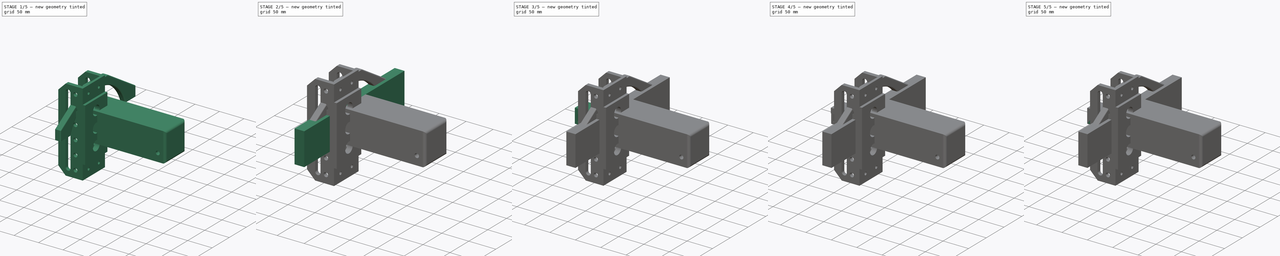
[diagram: build sequence overview — one tinted view per stage of 5, left to right]
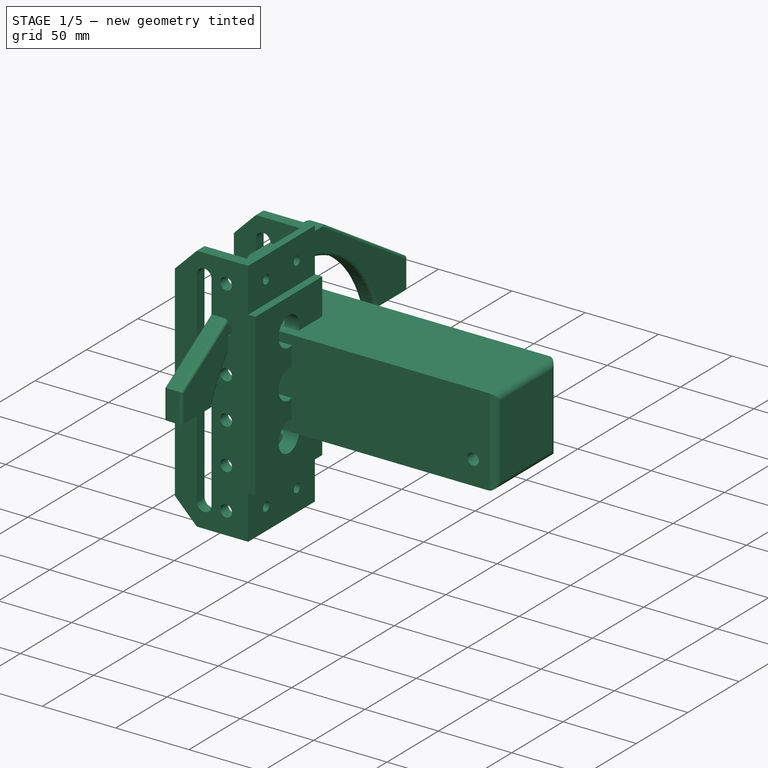
[diagram: stage 1 of 5 — iso view after this stage's code; geometry added in this stage tinted green]
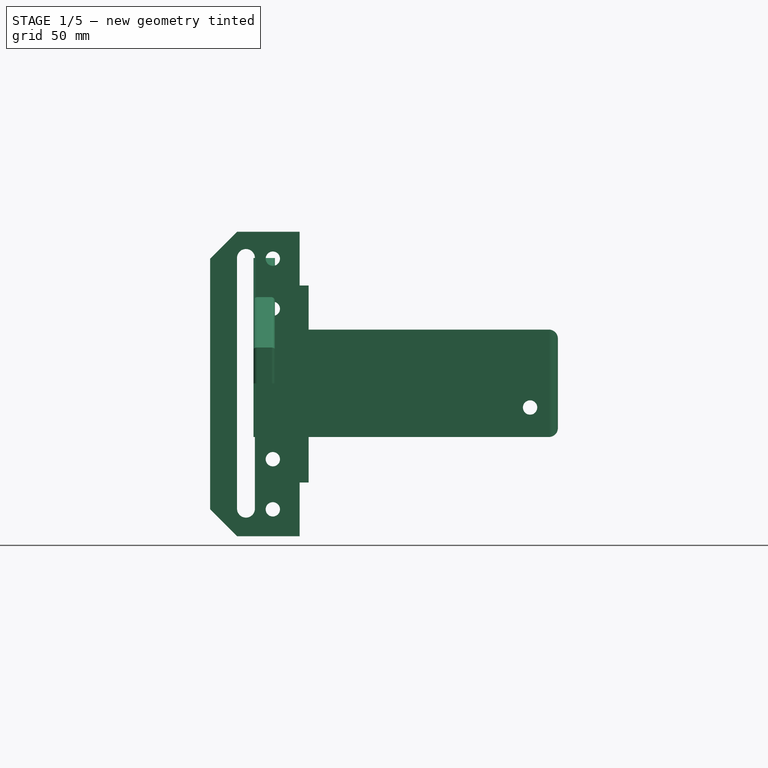
[diagram: stage 1 of 5 — front view after this stage's code; geometry added in this stage tinted green]
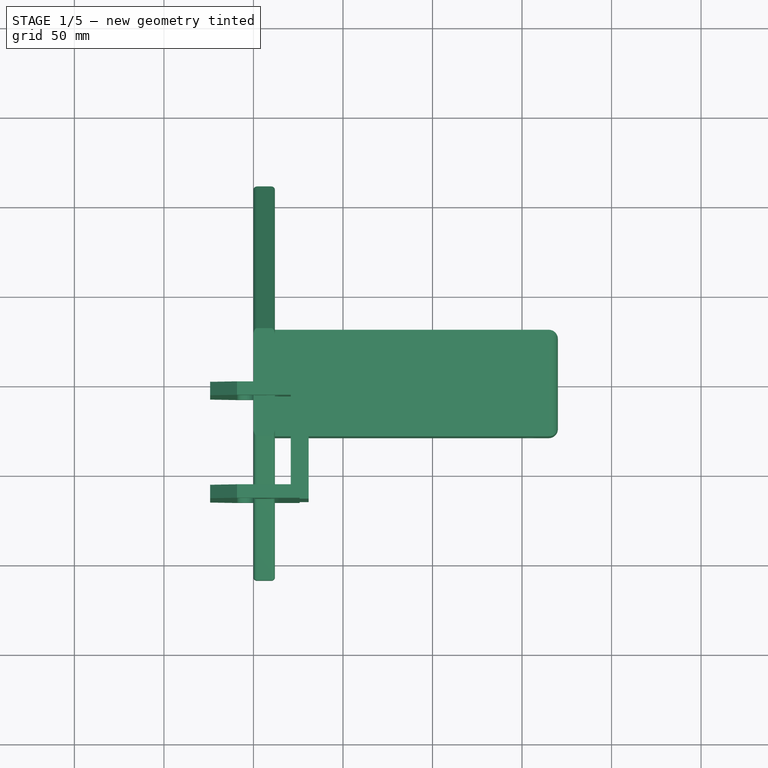
[diagram: stage 1 of 5 — top view after this stage's code; geometry added in this stage tinted green]
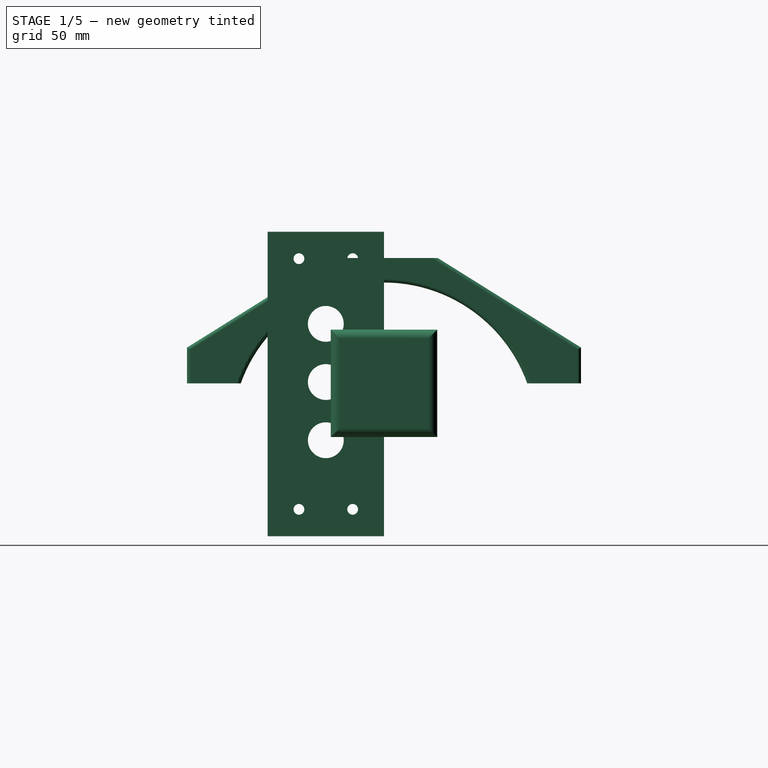
[diagram: stage 1 of 5 — right view after this stage's code; geometry added in this stage tinted green]
FCSTD DOCUMENT  (FreeCAD 0.19R24291 (Git))
Label: tablet holder
License: All rights reserved
LicenseURL: http://en.wikipedia.org/wiki/All_rights_reserved
objects: Sketcher::SketchObject×46, PartDesign::Pocket×29, PartDesign::Chamfer×18, PartDesign::Pad×17, PartDesign::Body×11, PartDesign::Fillet×5, PartDesign::LinearPattern×2, PartDesign::Plane×2, Spreadsheet::Sheet×1, PartDesign::Mirrored×1, PartDesign::PolarPattern×1, Drawing::FeatureViewPart×1, Drawing::FeaturePage×1
note: 201 computed .brp shape members not serialized (recipe doc carries the construction recipe); baked Part::Feature solids carry a one-line shape summary decoded from their .brp

FEATURE [Sketcher::SketchObject] Sketch
  FullyConstrained = false
  MapMode = 5
  Placement = pos=(0,0,0) rot=(1,0,0;1.5708rad)
  Support = -> [XZ_Plane]
  expr: Constraints[10] = Spreadsheet.bodyheight - 15mm
  sketch-geometry (6):
    g0: LineSegment StartX=-9.17467 StartY=84.6175 StartZ=0 EndX=30.8253 EndY=84.6175 EndZ=0
    g1: LineSegment StartX=30.8253 StartY=84.6175 StartZ=0 EndX=30.8253 EndY=-85.3825 EndZ=0
    g2: LineSegment StartX=30.8253 StartY=-85.3825 StartZ=0 EndX=-9.17467 EndY=-85.3825 EndZ=0
    g3: LineSegment StartX=-24.1747 StartY=-70.3825 StartZ=0 EndX=-24.1747 EndY=69.6175 EndZ=0
    g4: LineSegment StartX=-9.17467 StartY=84.6175 StartZ=0 EndX=-24.1747 EndY=69.6175 EndZ=0
    g5: LineSegment StartX=-24.1747 StartY=-70.3825 StartZ=0 EndX=-9.17467 EndY=-85.3825 EndZ=0
  constraints (15):
    c: Coincident(g0,g1)
    c: Coincident(g1,g2)
    c: Horizontal(g0)
    c: Horizontal(g2)
    c: Vertical(g1)
    c: Vertical(g3)
    c: Coincident(g0,g4)
    c: Coincident(g3,g4)
    c: Coincident(g3,g5)
    c: Coincident(g2,g5)
    c: DistanceX(g2,g2) = 40
    c: DistanceY(g1,g1) = 170
    c: DistanceY(g3,g3) = 140
    c: Equal(g0,g2)
    c: DistanceX(g3,g0) = 15
FEATURE [PartDesign::Pad] Pad
  Direction = (1,1,1)
  Length = 65
  Length2 = 100
  Placement = pos=(0,0,0) rot=(1,0,0;1.5708rad)
  Profile = -> Sketch
  Type = 0
  expr: Length = Spreadsheet.bodywidth
FEATURE [Sketcher::SketchObject] Sketch001
  ExternalGeometry = -> [Pad]
  FullyConstrained = true
  MapMode = 5
  Placement = pos=(0,-65,-1.43e-14) rot=(1,0,0;1.5708rad)
  Support = -> [Pad]
  sketch-geometry (4):
    g0: ArcOfCircle CenterX=-4.17467 CenterY=70 CenterZ=0 NormalX=0 NormalY=0 NormalZ=1 AngleXU=0 Radius=5 StartAngle=-9e-16 EndAngle=3.14159
    g1: ArcOfCircle CenterX=-4.17467 CenterY=-70 CenterZ=0 NormalX=0 NormalY=0 NormalZ=1 AngleXU=0 Radius=5 StartAngle=3.14159 EndAngle=6.28319
    g2: LineSegment StartX=-9.17467 StartY=70 StartZ=0 EndX=-9.17467 EndY=-70 EndZ=0
    g3: LineSegment StartX=0.825332 StartY=70 StartZ=0 EndX=0.825332 EndY=-70 EndZ=0
  constraints (10):
    c: Tangent(g0,g3) = 1.5708
    c: Tangent(g0,g2) = -1.5708
    c: Tangent(g2,g1) = -1.5708
    c: Tangent(g3,g1) = 1.5708
    c: Vertical(g2)
    c: Equal(g0,g1)
    c: Radius(g0) = 5
    c: DistanceY(g2,g2) = 140
    c: DistanceY(g1,g-1) = 70
    c: DistanceX(g0,g-3) = 35
FEATURE [PartDesign::Pocket] Pocket
  BaseFeature = -> Pad
  Length = 5
  Length2 = 100
  Placement = pos=(0,0,0) rot=(1,0,0;1.5708rad)
  Profile = -> Sketch001
  Type = 1
FEATURE [Sketcher::SketchObject] Sketch002
  ExternalGeometry = -> [Pocket]
  FullyConstrained = true
  MapMode = 5
  Placement = pos=(0,-65,-1.43e-14) rot=(1,0,0;1.5708rad)
  Support = -> [Pocket]
  sketch-geometry (1):
    g0: Circle CenterX=10.8253 CenterY=69.6175 CenterZ=0 NormalX=0 NormalY=0 NormalZ=1 AngleXU=0 Radius=4
  constraints (3):
    c: DistanceX(g0,g-4) = 20
    c: DistanceY(g0,g-4) = 15
    c: Radius(g0) = 4
FEATURE [PartDesign::Pocket] Pocket001
  BaseFeature = -> Pocket
  Length = 5
  Length2 = 100
  Placement = pos=(0,0,0) rot=(1,0,0;1.5708rad)
  Profile = -> Sketch002
  Type = 1
FEATURE [PartDesign::LinearPattern] LinearPattern
  BaseFeature = -> Pocket001
  Direction = -> Sketch002 [V_Axis]
  Length = 140
  Occurrences = 6
  Originals = -> [Pocket001]
  Placement = pos=(0,0,0) rot=(1,0,0;1.5708rad)
  Reversed = true
FEATURE [Sketcher::SketchObject] Sketch003
  ExternalGeometry = -> [LinearPattern]
  FullyConstrained = true
  MapMode = 5
  Placement = pos=(-24.1747,0,0) rot=(0.707107,0,-0.707107;3.14159rad)
  Support = -> [LinearPattern]
  sketch-geometry (4):
    g0: LineSegment StartX=-84.6175 StartY=57.5 StartZ=0 EndX=85.3825 EndY=57.5 EndZ=0
    g1: LineSegment StartX=85.3825 StartY=57.5 StartZ=0 EndX=85.3825 EndY=7.5 EndZ=0
    g2: LineSegment StartX=85.3825 StartY=7.5 StartZ=0 EndX=-84.6175 EndY=7.5 EndZ=0
    g3: LineSegment StartX=-84.6175 StartY=7.5 StartZ=0 EndX=-84.6175 EndY=57.5 EndZ=0
  constraints (12):
    c: Coincident(g0,g1)
    c: Coincident(g1,g2)
    c: Coincident(g2,g3)
    c: Coincident(g3,g0)
    c: Horizontal(g0)
    c: Horizontal(g2)
    c: Vertical(g1)
    c: Vertical(g3)
    c: PointOnObject(g0,g-8)
    c: PointOnObject(g1,g-4)
    c: DistanceY(g1,g1) = 50
    c: DistanceY(g0,g-9) = 7.5
FEATURE [PartDesign::Pocket] Pocket002
  BaseFeature = -> LinearPattern
  Length = 45
  Length2 = 100
  Placement = pos=(0,0,0) rot=(1,0,0;1.5708rad)
  Profile = -> Sketch003
  Type = 0
  expr: Length = Spreadsheet.bodyheight - 10mm
FEATURE [Sketcher::SketchObject] Sketch004
  ExternalGeometry = -> [Pocket002]
  FullyConstrained = false
  MapMode = 5
  Placement = pos=(30.8253,0,0) rot=(0.707107,0,0.707107;3.14159rad)
  Support = -> [Pocket002]
  sketch-geometry (8):
    g0: LineSegment StartX=-85.3825 StartY=65 StartZ=0 EndX=-55.3825 EndY=65 EndZ=0
    g1: LineSegment StartX=-55.3825 StartY=65 StartZ=0 EndX=-55.3825 EndY=0 EndZ=0
    g2: LineSegment StartX=-55.3825 StartY=0 StartZ=0 EndX=-85.3825 EndY=0 EndZ=0
    g3: LineSegment StartX=-85.3825 StartY=0 StartZ=0 EndX=-85.3825 EndY=65 EndZ=0
    g4: LineSegment StartX=84.6175 StartY=65 StartZ=0 EndX=54.6175 EndY=65 EndZ=0
    g5: LineSegment StartX=54.6175 StartY=65 StartZ=0 EndX=54.6175 EndY=0 EndZ=0
    g6: LineSegment StartX=54.6175 StartY=0 StartZ=0 EndX=84.6175 EndY=0 EndZ=0
    g7: LineSegment StartX=84.6175 StartY=0 StartZ=0 EndX=84.6175 EndY=65 EndZ=0
  constraints (21):
    c: Coincident(g0,g1)
    c: Coincident(g1,g2)
    c: Coincident(g2,g3)
    c: Coincident(g3,g0)
    c: Horizontal(g0)
    c: Horizontal(g2)
    c: Vertical(g1)
    c: Vertical(g3)
    c: Coincident(g0,g-3)
    c: DistanceX(g2,g2) = 30
    c: Coincident(g4,g5)
    c: Coincident(g5,g6)
    c: Coincident(g6,g7)
    c: Coincident(g7,g4)
    c: Horizontal(g4)
    c: Horizontal(g6)
    c: Vertical(g5)
    c: Vertical(g7)
    c: Coincident(g4,g-4)
    c: PointOnObject(g5,g-1)
    c: DistanceX(g6,g6) = 30
FEATURE [PartDesign::Pocket] Pocket003
  BaseFeature = -> Pocket002
  Length = 5
  Length2 = 100
  Placement = pos=(0,0,0) rot=(1,0,0;1.5708rad)
  Profile = -> Sketch004
  Type = 0
FEATURE [Sketcher::SketchObject] Sketch005
  ExternalGeometry = -> [Sketch004]
  FullyConstrained = true
  MapMode = 5
  Placement = pos=(25.8253,0,-5e-15) rot=(0.707107,0,0.707107;3.14159rad)
  sketch-geometry (4):
    g0: Circle CenterX=-70.3825 CenterY=17.5 CenterZ=0 NormalX=0 NormalY=0 NormalZ=1 AngleXU=0 Radius=3
    g1: Circle CenterX=-70.3825 CenterY=47.5 CenterZ=0 NormalX=0 NormalY=0 NormalZ=1 AngleXU=0 Radius=3
    g2: Circle CenterX=69.6175 CenterY=47.5 CenterZ=0 NormalX=0 NormalY=0 NormalZ=1 AngleXU=0 Radius=3
    g3: Circle CenterX=69.6175 CenterY=17.5 CenterZ=0 NormalX=0 NormalY=0 NormalZ=1 AngleXU=0 Radius=3
  constraints (12):
    c: Radius(g0) = 3
    c: Radius(g1) = 3
    c: DistanceX(g-3,g1) = 15
    c: DistanceY(g1,g-4) = 17.5
    c: DistanceY(g-4,g0) = 17.5
    c: DistanceX(g-4,g0) = 15
    c: Radius(g2) = 3
    c: Radius(g3) = 3
    c: DistanceX(g2,g-6) = 15
    c: DistanceY(g2,g-6) = 17.5
    c: DistanceX(g3,g-5) = 15
    c: DistanceY(g-5,g3) = 17.5
FEATURE [PartDesign::Pocket] Pocket004
  BaseFeature = -> Pocket003
  Length = 5
  Length2 = 100
  Placement = pos=(0,0,0) rot=(1,0,0;1.5708rad)
  Profile = -> Sketch005
  Type = 1
FEATURE [Sketcher::SketchObject] Sketch035
  FullyConstrained = false
  MapMode = 5
  Placement = pos=(30.8253,0,0) rot=(0.707107,0,0.707107;3.14159rad)
  sketch-geometry (1):
    g0: Circle CenterX=-31.7896 CenterY=32.5 CenterZ=0 NormalX=0 NormalY=0 NormalZ=1 AngleXU=0 Radius=10
  constraints (2):
    c: Radius(g0) = 10
    c: DistanceY(g-1,g0) = 32.5
FEATURE [PartDesign::Pocket] Pocket023
  BaseFeature = -> Pocket004
  Length = 5
  Length2 = 100
  Placement = pos=(0,0,0) rot=(1,0,0;1.5708rad)
  Profile = -> Sketch035
  Type = 1
FEATURE [PartDesign::Body] Body009  label="Knob"
  Group = -> [Sketch045,Pad015,Chamfer016,Chamfer017,DatumPlane,Sketch046,Pocket031,Chamfer023,PolarPattern,Sketch054,Pad018,Sketch055,Pocket035,DatumPlane001,Sketch056,Pocket036,Chamfer024]
  Origin = -> Origin009
  Tip = -> Chamfer024
FEATURE [Sketcher::SketchObject] Sketch058
  FullyConstrained = true
  MapMode = 5
  Placement = pos=(0,0,0) rot=(0.57735,0.57735,0.57735;2.0944rad)
  Support = -> [YZ_Plane010]
  sketch-geometry (8):
    g0: LineSegment StartX=-110 StartY=0 StartZ=0 EndX=-110 EndY=20 EndZ=0
    g1: LineSegment StartX=-110 StartY=20 StartZ=0 EndX=-30 EndY=70 EndZ=0
    g2: LineSegment StartX=-30 StartY=70 StartZ=0 EndX=30 EndY=70 EndZ=0
    g3: LineSegment StartX=30 StartY=70 StartZ=0 EndX=110 EndY=20 EndZ=0
    g4: LineSegment StartX=110 StartY=20 StartZ=0 EndX=110 EndY=0 EndZ=0
    g5: LineSegment StartX=-110 StartY=0 StartZ=0 EndX=-80 EndY=-2.49e-14 EndZ=0
    g6: LineSegment StartX=110 StartY=0 StartZ=0 EndX=80 EndY=-7.1e-15 EndZ=0
    g7: ArcOfCircle CenterX=1e-15 CenterY=-28.7228 CenterZ=0 NormalX=0 NormalY=0 NormalZ=1 AngleXU=0 Radius=85 StartAngle=0.344701 EndAngle=2.79689
  constraints (24):
    c: PointOnObject(g0,g-1)
    c: Vertical(g0)
    c: Coincident(g0,g1)
    c: Coincident(g1,g2)
    c: Coincident(g2,g3)
    c: Coincident(g3,g4)
    c: PointOnObject(g4,g-1)
    c: Vertical(g4)
    c: DistanceY(g4,g2) = 70
    c: DistanceY(g0,g0) = 20
    c: DistanceY(g4,g4) = 20
    c: DistanceX(g2,g2) = 60
    c: Symmetric(g1,g2,g-2)
    c: Equal(g1,g3)
    c: DistanceX(g1,g1) = 80
    c: Coincident(g5,g0)
    c: PointOnObject(g5,g-1)
    c: Coincident(g6,g4)
    c: PointOnObject(g6,g-1)
    c: DistanceX(g6,g6) = 30
    c: Equal(g5,g6)
    c: Coincident(g7,g5)
    c: Coincident(g7,g6)
    c: Radius(g7) = 85
FEATURE [PartDesign::Pad] Pad019
  Direction = (1,1,1)
  Length = 12
  Length2 = 100
  Placement = pos=(0,0,0) rot=(0.57735,0.57735,0.57735;2.0944rad)
  Profile = -> Sketch058
  Type = 0
FEATURE [PartDesign::Body] Body011  label="Cross Support"
  Group = -> [Sketch059,Pad020]
  Origin = -> Origin011
  Tip = -> Pad020
FEATURE [Sketcher::SketchObject] Sketch060
  FullyConstrained = true
  MapMode = 5
  Placement = pos=(0,0,0) rot=(0.57735,0.57735,0.57735;2.0944rad)
  Support = -> [YZ_Plane012]
  sketch-geometry (4):
    g0: LineSegment StartX=-29.75 StartY=30 StartZ=0 EndX=29.75 EndY=30 EndZ=0
    g1: LineSegment StartX=29.75 StartY=30 StartZ=0 EndX=29.75 EndY=-30 EndZ=0
    g2: LineSegment StartX=29.75 StartY=-30 StartZ=0 EndX=-29.75 EndY=-30 EndZ=0
    g3: LineSegment StartX=-29.75 StartY=-30 StartZ=0 EndX=-29.75 EndY=30 EndZ=0
  constraints (11):
    c: Coincident(g0,g1)
    c: Coincident(g1,g2)
    c: Coincident(g2,g3)
    c: Coincident(g3,g0)
    c: Horizontal(g0)
    c: Horizontal(g2)
    c: Vertical(g1)
    c: Vertical(g3)
    c: DistanceY(g1,g1) = 60
    c: DistanceX(g0,g0) = 59.5
    c: Symmetric(g0,g1,g-1)
FEATURE [PartDesign::Pad] Pad021
  Direction = (1,1,1)
  Length = 170
  Length2 = 100
  Placement = pos=(0,0,0) rot=(0.57735,0.57735,0.57735;2.0944rad)
  Profile = -> Sketch060
  Type = 0
FEATURE [PartDesign::Fillet] Fillet004
  Base = -> Pad021 [Edge7,Edge4,Edge10,Edge12]
  BaseFeature = -> Pad021
  Placement = pos=(0,0,0) rot=(0.57735,0.57735,0.57735;2.0944rad)
  Radius = 5
  SupportTransform = false
FEATURE [Sketcher::SketchObject] Sketch061
  ExternalGeometry = -> [Fillet004]
  FullyConstrained = true
  MapMode = 5
  Placement = pos=(1.31e-14,29.75,-6.5e-15) rot=(0.57735,0.57735,0.57735;4.18879rad)
  Support = -> [Fillet004]
  sketch-geometry (1):
    g0: Circle CenterX=-13.5 CenterY=154.5 CenterZ=0 NormalX=0 NormalY=0 NormalZ=1 AngleXU=0 Radius=4
  constraints (3):
    c: Diameter(g0) = 8
    c: DistanceX(g-4,g0) = 16.5
    c: DistanceY(g0,g-3) = 15.5
FEATURE [PartDesign::Pocket] Pocket038
  BaseFeature = -> Fillet004
  Length = 5
  Length2 = 100
  Placement = pos=(0,0,0) rot=(0.57735,0.57735,0.57735;2.0944rad)
  Profile = -> Sketch061
  Type = 1
FEATURE [PartDesign::Body] Body012  label="Upright"
  Group = -> [Sketch060,Pad021,Fillet004,Sketch061,Pocket038]
  Origin = -> Origin012
  Tip = -> Pocket038
FEATURE [PartDesign::Fillet] Fillet005
  Base = -> Pad019 [Edge21,Edge22]
  BaseFeature = -> Pad019
  Placement = pos=(0,0,0) rot=(0.57735,0.57735,0.57735;2.0944rad)
  Radius = 2
  SupportTransform = false
FEATURE [PartDesign::Fillet] Fillet006
  Base = -> Fillet005 [Edge22,Edge16,Edge19,Edge25,Edge17,Edge23,Edge14,Edge20]
  BaseFeature = -> Fillet005
  Placement = pos=(0,0,0) rot=(0.57735,0.57735,0.57735;2.0944rad)
  Radius = 2
  SupportTransform = false
FEATURE [PartDesign::Body] Body010  label="Legs"
  Group = -> [Sketch058,Pad019,Fillet005,Fillet006]
  Origin = -> Origin010
  Tip = -> Fillet006
FEATURE [PartDesign::LinearPattern] LinearPattern001
  BaseFeature = -> Pocket023
  Direction = -> Sketch035 [H_Axis]
  Length = 65
  Occurrences = 3
  Originals = -> [Pocket023]
  Placement = pos=(0,0,0) rot=(1,0,0;1.5708rad)
FEATURE [PartDesign::Body] Body
  Group = -> [Sketch,Pad,Sketch001,Pocket,Sketch002,Pocket001,LinearPattern,Sketch003,Pocket002,Sketch004,Pocket003,Sketch005,Pocket004,Sketch035,Pocket023,LinearPattern001]
  Origin = -> Origin
  Tip = -> LinearPattern001
FEATURE [Drawing::FeatureViewPart] Ortho  label="Ortho_0_0"
  Direction = (1,0,0)
  HiddenWidth = 0.15
  LineWidth = 0.35
  Rotation = -90
  ShowHiddenLines = false
  ShowSmoothLines = false
  Source = -> Body010
  Tolerance = 0.05
  ViewResult = <blob: 4936 chars omitted>
  Visible = true
  X = 148.5
  Y = 121
FEATURE [Drawing::FeaturePage] Page  label="Leg Drawing"
  EditableTexts = Jason Pell | Leg Side View | 2 are required | A4 | 1 | 1:1 | 1 | 1 | 28/08/2021 | REV A
  Group = -> [Ortho]
  Template = <path>
note: 1 file-system path scrubbed to <path> (originals preserved in the JSON sidecar)
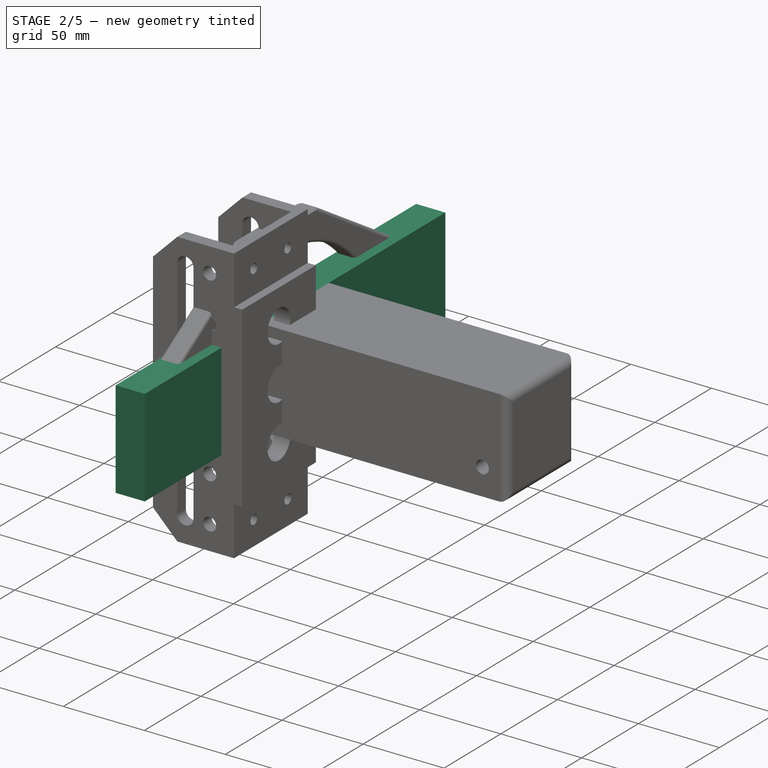
[diagram: stage 2 of 5 — iso view after this stage's code; geometry added in this stage tinted green]
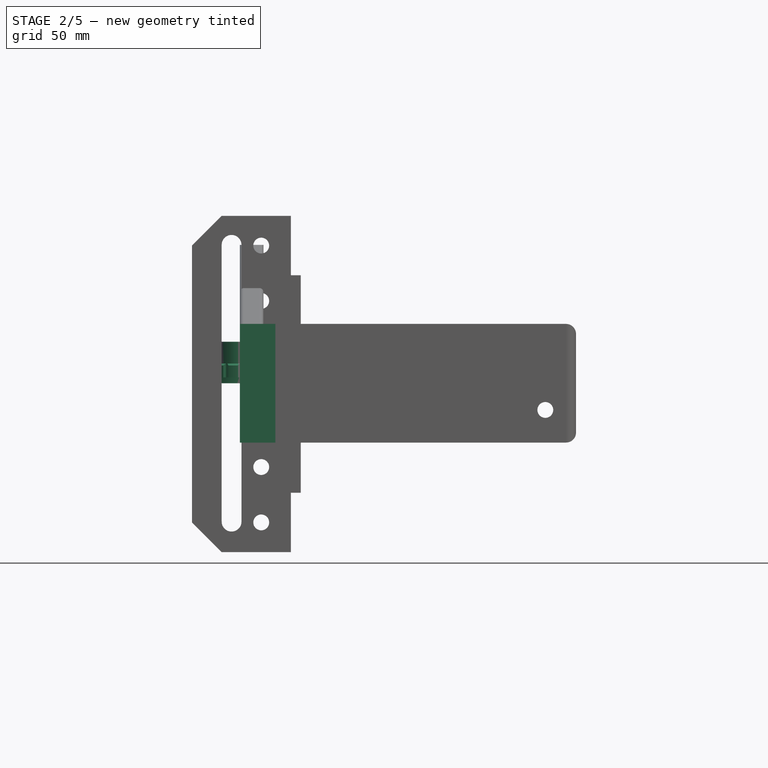
[diagram: stage 2 of 5 — front view after this stage's code; geometry added in this stage tinted green]
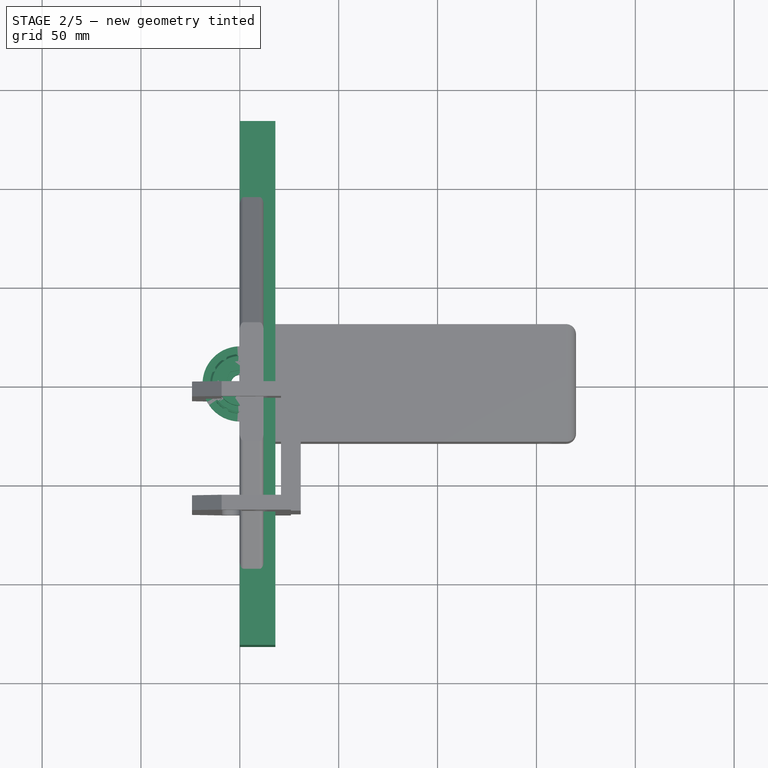
[diagram: stage 2 of 5 — top view after this stage's code; geometry added in this stage tinted green]
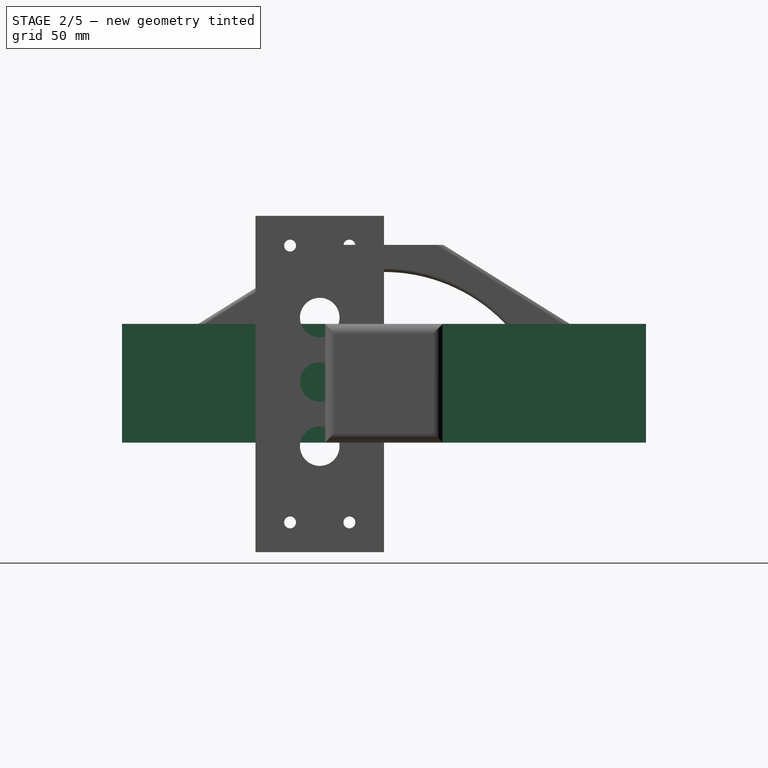
[diagram: stage 2 of 5 — right view after this stage's code; geometry added in this stage tinted green]
FEATURE [Sketcher::SketchObject] Sketch043
  FullyConstrained = false
  MapMode = 5
  Support = -> [XY_Plane008]
  sketch-geometry (1):
    g0: Circle CenterX=0.140173 CenterY=0 CenterZ=0 NormalX=0 NormalY=0 NormalZ=1 AngleXU=0 Radius=19
  constraints (2):
    c: PointOnObject(g0,g-1)
    c: Diameter(g0) = 38
FEATURE [PartDesign::Pad] Pad014
  Direction = (1,1,1)
  Length = 3
  Length2 = 100
  Profile = -> Sketch043
  Type = 0
FEATURE [Sketcher::SketchObject] Sketch044
  FullyConstrained = true
  MapMode = 5
  Placement = pos=(0,0,0) rot=(1,0,0;3.14159rad)
  Support = -> [Pad014]
  sketch-geometry (1):
    g0: Circle CenterX=0 CenterY=0 CenterZ=0 NormalX=0 NormalY=0 NormalZ=1 AngleXU=0 Radius=4.5
  constraints (2):
    c: Coincident(g0,g-1)
    c: Diameter(g0) = 9
FEATURE [PartDesign::Pocket] Pocket030
  BaseFeature = -> Pad014
  Length = 5
  Length2 = 100
  Profile = -> Sketch044
  Type = 1
FEATURE [PartDesign::Chamfer] Chamfer014
  Angle = 45
  Base = -> Pocket030 [Edge4,Edge5]
  BaseFeature = -> Pocket030
  ChamferType = 0
  FlipDirection = false
  Size = 0.3
  Size2 = 1
  SupportTransform = false
FEATURE [Sketcher::SketchObject] Sketch045
  FullyConstrained = true
  MapMode = 5
  Support = -> [XY_Plane009]
  sketch-geometry (1):
    g0: Circle CenterX=0 CenterY=0 CenterZ=0 NormalX=0 NormalY=0 NormalZ=1 AngleXU=0 Radius=15
  constraints (2):
    c: Coincident(g0,g-1)
    c: Diameter(g0) = 30
FEATURE [PartDesign::Pad] Pad015
  Direction = (1,1,1)
  Length = 10
  Length2 = 100
  Profile = -> Sketch045
  Type = 0
FEATURE [PartDesign::Chamfer] Chamfer016
  Angle = 45
  Base = -> Pad015 [Edge3]
  BaseFeature = -> Pad015
  ChamferType = 0
  FlipDirection = false
  Size = 1
  Size2 = 1
  SupportTransform = false
FEATURE [PartDesign::Chamfer] Chamfer017
  Angle = 45
  Base = -> Chamfer016 [Edge3]
  BaseFeature = -> Chamfer016
  ChamferType = 0
  FlipDirection = false
  Size = 1
  Size2 = 1
  SupportTransform = false
FEATURE [PartDesign::Plane] DatumPlane
  AttachmentOffset = pos=(15,0,0) rot=(0,1,0;1.5708rad)
  Length = 60
  MapMode = 45
  Placement = pos=(15,1e-16,5) rot=(0,1,0;1.5708rad)
  ResizeMode = 0
  Support = -> [Chamfer017]
  Width = 60
FEATURE [Sketcher::SketchObject] Sketch046
  ExternalGeometry = -> [Chamfer017]
  FullyConstrained = false
  MapMode = 5
  Placement = pos=(15,1e-16,5) rot=(0,1,0;1.5708rad)
  Support = -> [DatumPlane]
  sketch-geometry (4):
    g0: LineSegment StartX=-5 StartY=0.909541 StartZ=0 EndX=5 EndY=0.909541 EndZ=0
    g1: LineSegment StartX=5 StartY=0.909541 StartZ=0 EndX=5 EndY=-0.0904593 EndZ=0
    g2: LineSegment StartX=5 StartY=-0.0904593 StartZ=0 EndX=-5 EndY=-0.0904593 EndZ=0
    g3: LineSegment StartX=-5 StartY=-0.0904593 StartZ=0 EndX=-5 EndY=0.909541 EndZ=0
  constraints (11):
    c: Coincident(g0,g1)
    c: Coincident(g1,g2)
    c: Coincident(g2,g3)
    c: Coincident(g3,g0)
    c: Horizontal(g0)
    c: Horizontal(g2)
    c: Vertical(g1)
    c: Vertical(g3)
    c: PointOnObject(g0,g-3)
    c: PointOnObject(g1,g-4)
    c: DistanceY(g3,g3) = 1
FEATURE [PartDesign::Pocket] Pocket031
  BaseFeature = -> Chamfer017
  Length = 1
  Length2 = 100
  Profile = -> Sketch046
  Type = 0
FEATURE [PartDesign::Body] Body007  label="Washer"
  Group = -> [Sketch041,Pad013,Sketch052,Pad017,Fillet,Mirrored002,Sketch053,Pocket034,Fillet003,Chamfer019,Chamfer020,Chamfer021,Chamfer022]
  Origin = -> Origin007
  Tip = -> Chamfer022
FEATURE [PartDesign::Chamfer] Chamfer023
  Angle = 45
  Base = -> Pocket031 [Edge4,Edge2]
  BaseFeature = -> Pocket031
  ChamferType = 0
  FlipDirection = false
  Size = 0.95
  Size2 = 1
  SupportTransform = false
FEATURE [PartDesign::PolarPattern] PolarPattern
  Angle = 360
  Axis = -> Z_Axis009
  BaseFeature = -> Chamfer023
  Occurrences = 12
  Originals = -> [Chamfer023,Pocket031]
FEATURE [Sketcher::SketchObject] Sketch054
  FullyConstrained = true
  MapMode = 5
  Placement = pos=(0,0,10) rot=(0,0,1;0rad)
  Support = -> [PolarPattern]
  sketch-geometry (1):
    g0: Circle CenterX=0 CenterY=0 CenterZ=0 NormalX=0 NormalY=0 NormalZ=1 AngleXU=0 Radius=11.25
  constraints (2):
    c: Coincident(g0,g-1)
    c: Radius(g0) = 11.25
FEATURE [PartDesign::Pad] Pad018
  BaseFeature = -> PolarPattern
  Direction = (1,1,1)
  Length = 11
  Length2 = 100
  Profile = -> Sketch054
  Type = 0
FEATURE [Sketcher::SketchObject] Sketch055
  FullyConstrained = false
  MapMode = 5
  Placement = pos=(0,0,21) rot=(0,0,1;0rad)
  Support = -> [Pad018]
  sketch-geometry (7):
    g0: LineSegment StartX=5.04775 StartY=-5.69079 StartZ=0 EndX=7.45225 EndY=1.52608 EndZ=0
    g1: LineSegment StartX=7.45225 StartY=1.52608 StartZ=0 EndX=2.4045 EndY=7.21688 EndZ=0
    g2: LineSegment StartX=2.4045 StartY=7.21688 StartZ=0 EndX=-5.04775 EndY=5.69079 EndZ=0
    g3: LineSegment StartX=-5.04775 StartY=5.69079 StartZ=0 EndX=-7.45225 EndY=-1.52608 EndZ=0
    g4: LineSegment StartX=-7.45225 StartY=-1.52608 StartZ=0 EndX=-2.4045 EndY=-7.21688 EndZ=0
    g5: LineSegment StartX=-2.4045 StartY=-7.21688 StartZ=0 EndX=5.04775 EndY=-5.69079 EndZ=0
    g6: Circle CenterX=0 CenterY=0 CenterZ=0 NormalX=0 NormalY=0 NormalZ=1 AngleXU=0 Radius=7.6069
  constraints (15):
    c: Coincident(g0,g1)
    c: Coincident(g1,g2)
    c: Coincident(g2,g3)
    c: Coincident(g3,g4)
    c: Coincident(g4,g5)
    c: Coincident(g5,g0)
    c: Equal(g0, g1-g5) x5
    c: PointOnObject(g0,g6)
    c: PointOnObject(g1,g6)
    c: PointOnObject(g2,g6)
    c: PointOnObject(g3,g6)
    c: PointOnObject(g4,g6)
    c: PointOnObject(g5,g6)
    c: Coincident(g6,g-1)
    c: DistanceX(g3,g0) = 12.5
FEATURE [PartDesign::Pocket] Pocket035
  BaseFeature = -> Pad018
  Length = 6.5
  Length2 = 100
  Profile = -> Sketch055
  Type = 0
FEATURE [PartDesign::Plane] DatumPlane001
  Length = 60
  MapMode = 5
  Placement = pos=(0,0,21) rot=(0,0,1;0rad)
  ResizeMode = 0
  Support = -> [Pocket035]
  Width = 60
FEATURE [Sketcher::SketchObject] Sketch056
  FullyConstrained = true
  MapMode = 5
  Placement = pos=(0,0,21) rot=(0,0,1;0rad)
  Support = -> [DatumPlane001]
  sketch-geometry (1):
    g0: Circle CenterX=0 CenterY=0 CenterZ=0 NormalX=0 NormalY=0 NormalZ=1 AngleXU=0 Radius=4.5
  constraints (2):
    c: Coincident(g0,g-1)
    c: Radius(g0) = 4.5
FEATURE [PartDesign::Pocket] Pocket036
  BaseFeature = -> Pocket035
  Length = 25.5
  Length2 = 100
  Profile = -> Sketch056
  Type = 1
FEATURE [PartDesign::Body] Body008  label="Washer2"
  Group = -> [Sketch043,Pad014,Sketch044,Pocket030,Chamfer014,Chamfer015,Sketch057,Pocket037]
  Origin = -> Origin008
  Tip = -> Pocket037
FEATURE [PartDesign::Chamfer] Chamfer024
  Angle = 45
  Base = -> Pocket036 [Edge40]
  BaseFeature = -> Pocket036
  ChamferType = 0
  FlipDirection = false
  Size = 0.5
  Size2 = 1
  SupportTransform = false
FEATURE [Sketcher::SketchObject] Sketch059
  FullyConstrained = true
  MapMode = 5
  Placement = pos=(0,0,0) rot=(0.57735,0.57735,0.57735;2.0944rad)
  Support = -> [YZ_Plane011]
  sketch-geometry (4):
    g0: LineSegment StartX=-132.5 StartY=30 StartZ=0 EndX=132.5 EndY=30 EndZ=0
    g1: LineSegment StartX=132.5 StartY=30 StartZ=0 EndX=132.5 EndY=-30 EndZ=0
    g2: LineSegment StartX=132.5 StartY=-30 StartZ=0 EndX=-132.5 EndY=-30 EndZ=0
    g3: LineSegment StartX=-132.5 StartY=-30 StartZ=0 EndX=-132.5 EndY=30 EndZ=0
  constraints (11):
    c: Coincident(g0,g1)
    c: Coincident(g1,g2)
    c: Coincident(g2,g3)
    c: Coincident(g3,g0)
    c: Horizontal(g0)
    c: Horizontal(g2)
    c: Vertical(g1)
    c: Vertical(g3)
    c: DistanceX(g2,g2) = 265
    c: DistanceY(g3,g3) = 60
    c: Symmetric(g1,g0,g-1)
FEATURE [PartDesign::Pad] Pad020
  Direction = (1,1,1)
  Length = 18
  Length2 = 100
  Placement = pos=(0,0,0) rot=(0.57735,0.57735,0.57735;2.0944rad)
  Profile = -> Sketch059
  Type = 0
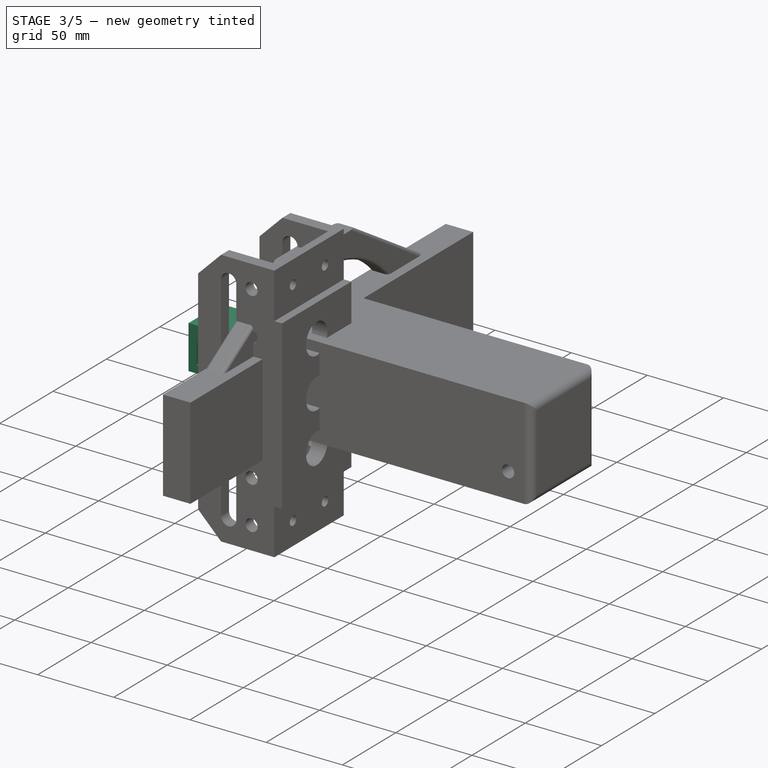
[diagram: stage 3 of 5 — iso view after this stage's code; geometry added in this stage tinted green]
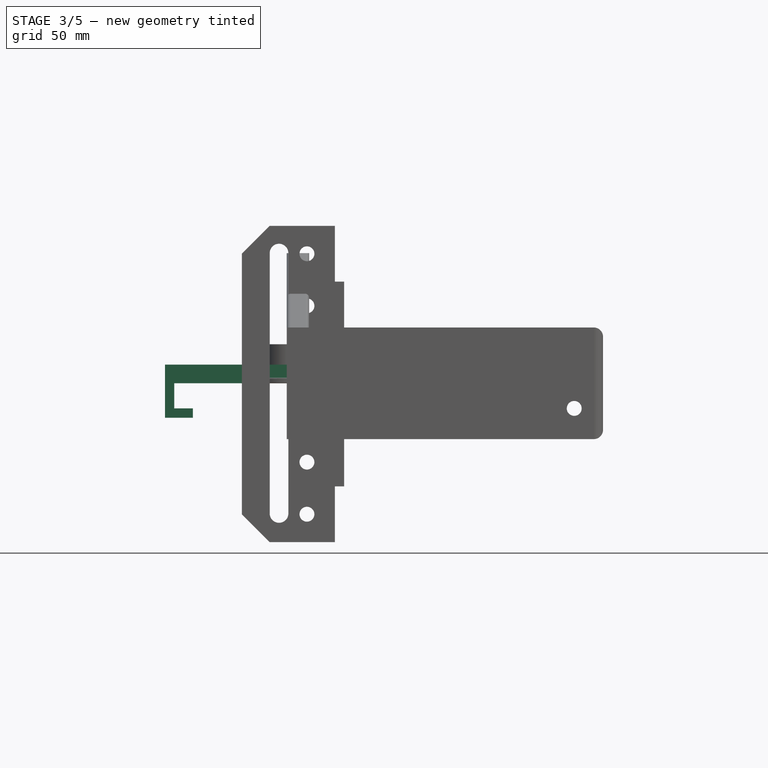
[diagram: stage 3 of 5 — front view after this stage's code; geometry added in this stage tinted green]
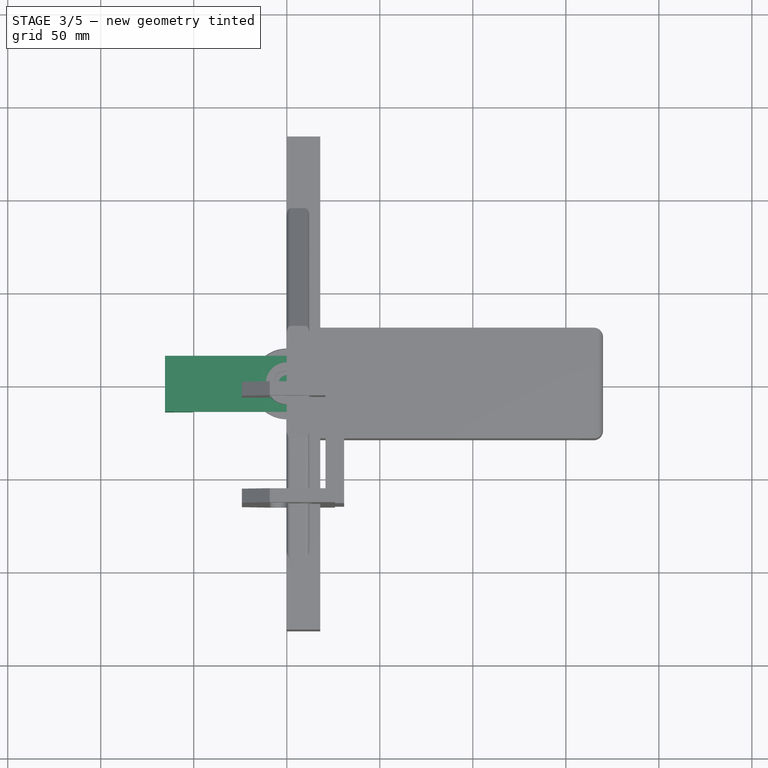
[diagram: stage 3 of 5 — top view after this stage's code; geometry added in this stage tinted green]
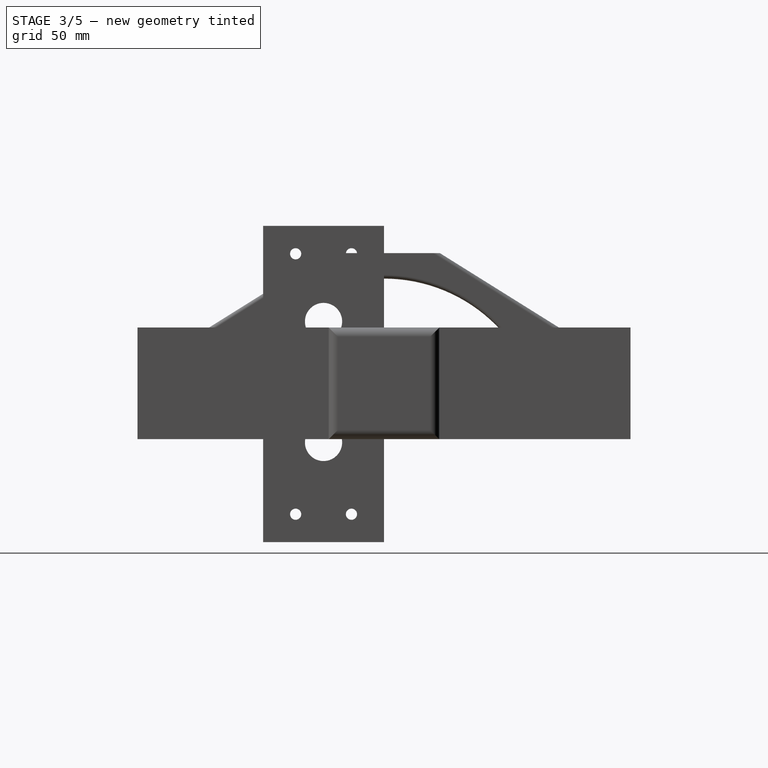
[diagram: stage 3 of 5 — right view after this stage's code; geometry added in this stage tinted green]
FEATURE [Sketcher::SketchObject] Sketch033
  FullyConstrained = true
  MapMode = 5
  Support = -> [XY_Plane006]
  expr: .Constraints.Length = Spreadsheet.supportlength
  sketch-geometry (4):
    g0: LineSegment StartX=-65.5 StartY=15 StartZ=0 EndX=65.5 EndY=15 EndZ=0
    g1: LineSegment StartX=65.5 StartY=15 StartZ=0 EndX=65.5 EndY=-15 EndZ=0
    g2: LineSegment StartX=65.5 StartY=-15 StartZ=0 EndX=-65.5 EndY=-15 EndZ=0
    g3: LineSegment StartX=-65.5 StartY=-15 StartZ=0 EndX=-65.5 EndY=15 EndZ=0
  constraints (11):
    c: Coincident(g0,g1)
    c: Coincident(g1,g2)
    c: Coincident(g2,g3)
    c: Coincident(g3,g0)
    c: Horizontal(g0)
    c: Horizontal(g2)
    c: Vertical(g1)
    c: Vertical(g3)
    c: DistanceX(g2,g2) = 131  'Length'
    c: DistanceY(g3,g3) = 30
    c: Symmetric(g0,g1,g-1)
FEATURE [PartDesign::Pad] Pad012
  Direction = (1,1,1)
  Length = 10
  Length2 = 100
  Profile = -> Sketch033
  Type = 0
FEATURE [Sketcher::SketchObject] Sketch032
  ExternalGeometry = -> [Pad012]
  FullyConstrained = true
  MapMode = 5
  Placement = pos=(0,0,0) rot=(1,0,0;3.14159rad)
  Support = -> [Pad012]
  sketch-geometry (4):
    g0: LineSegment StartX=-65.5 StartY=15 StartZ=0 EndX=-50.5 EndY=15 EndZ=0
    g1: LineSegment StartX=-50.5 StartY=15 StartZ=0 EndX=-50.5 EndY=-15 EndZ=0
    g2: LineSegment StartX=-50.5 StartY=-15 StartZ=0 EndX=-65.5 EndY=-15 EndZ=0
    g3: LineSegment StartX=-65.5 StartY=-15 StartZ=0 EndX=-65.5 EndY=15 EndZ=0
  constraints (11):
    c: Coincident(g0,g1)
    c: Coincident(g1,g2)
    c: Coincident(g2,g3)
    c: Coincident(g3,g0)
    c: Horizontal(g0)
    c: Horizontal(g2)
    c: Vertical(g1)
    c: Vertical(g3)
    c: Coincident(g0,g-4)
    c: PointOnObject(g1,g-5)
    c: DistanceX(g2,g2) = 15
FEATURE [PartDesign::Pad] Pad011
  BaseFeature = -> Pad012
  Direction = (1,1,1)
  Length = 18.5
  Length2 = 100
  Profile = -> Sketch032
  Type = 0
FEATURE [Sketcher::SketchObject] Sketch030
  ExternalGeometry = -> [Pad011]
  FullyConstrained = true
  MapMode = 5
  Placement = pos=(-50.5,0,0) rot=(0.57735,0.57735,0.57735;2.0944rad)
  Support = -> [Pad011]
  sketch-geometry (4):
    g0: LineSegment StartX=-15 StartY=0 StartZ=0 EndX=15 EndY=0 EndZ=0
    g1: LineSegment StartX=15 StartY=0 StartZ=0 EndX=15 EndY=-13.5 EndZ=0
    g2: LineSegment StartX=15 StartY=-13.5 StartZ=0 EndX=-15 EndY=-13.5 EndZ=0
    g3: LineSegment StartX=-15 StartY=-13.5 StartZ=0 EndX=-15 EndY=0 EndZ=0
  constraints (12):
    c: Coincident(g0,g1)
    c: Coincident(g1,g2)
    c: Coincident(g2,g3)
    c: Coincident(g3,g0)
    c: Horizontal(g0)
    c: Horizontal(g2)
    c: Vertical(g1)
    c: Vertical(g3)
    c: DistanceX(g2,g2) = 30
    c: DistanceY(g3,g3) = 13.5
    c: DistanceY(g0,g-5) = 0
    c: DistanceX(g1,g-4) = 0
FEATURE [PartDesign::Pocket] Pocket020
  BaseFeature = -> Pad011
  Length = 10
  Length2 = 100
  Profile = -> Sketch030
  Type = 0
FEATURE [PartDesign::Body] Body006  label="Top Left"
  Group = -> [Sketch033,Pad012,Sketch032,Pad011,Sketch030,Pocket020,Sketch031,Sketch034,Pocket021,Pocket022,Sketch040,Pocket028,Chamfer,Chamfer010]
  Origin = -> Origin006
  Tip = -> Chamfer010
FEATURE [Sketcher::SketchObject] Sketch041
  FullyConstrained = true
  MapMode = 5
  Support = -> [XY_Plane007]
  sketch-geometry (1):
    g0: Circle CenterX=0 CenterY=0 CenterZ=0 NormalX=0 NormalY=0 NormalZ=1 AngleXU=0 Radius=19
  constraints (2):
    c: Coincident(g0,g-1)
    c: Diameter(g0) = 38
FEATURE [PartDesign::Pad] Pad013
  Direction = (1,1,1)
  Length = 3
  Length2 = 100
  Profile = -> Sketch041
  Type = 0
FEATURE [PartDesign::Chamfer] Chamfer015
  Angle = 45
  Base = -> Chamfer014 [Edge2,Edge6]
  BaseFeature = -> Chamfer014
  ChamferType = 0
  FlipDirection = false
  Size = 0.3
  Size2 = 1
  SupportTransform = false
FEATURE [Sketcher::SketchObject] Sketch052
  FullyConstrained = true
  MapMode = 5
  Placement = pos=(0,0,3) rot=(0,0,1;0rad)
  Support = -> [Pad013]
  sketch-geometry (4):
    g0: LineSegment StartX=-3.875 StartY=9 StartZ=0 EndX=3.875 EndY=9 EndZ=0
    g1: LineSegment StartX=3.875 StartY=9 StartZ=0 EndX=3.875 EndY=6 EndZ=0
    g2: LineSegment StartX=3.875 StartY=6 StartZ=0 EndX=-3.875 EndY=6 EndZ=0
    g3: LineSegment StartX=-3.875 StartY=6 StartZ=0 EndX=-3.875 EndY=9 EndZ=0
  constraints (11):
    c: Coincident(g0,g1)
    c: Coincident(g1,g2)
    c: Coincident(g2,g3)
    c: Coincident(g3,g0)
    c: Horizontal(g2)
    c: Vertical(g1)
    c: Vertical(g3)
    c: DistanceX(g2,g2) = 7.75
    c: Symmetric(g0,g0,g-2)
    c: DistanceY(g3,g3) = 3
    c: DistanceY(g-1,g2) = 6
FEATURE [PartDesign::Pad] Pad017
  BaseFeature = -> Pad013
  Direction = (1,1,1)
  Length = 2
  Length2 = 100
  Profile = -> Sketch052
  Type = 0
FEATURE [PartDesign::Fillet] Fillet
  Base = -> Pad017 [Edge11,Edge13,Edge8,Edge9]
  BaseFeature = -> Pad017
  Radius = 0.5
  SupportTransform = false
FEATURE [PartDesign::Mirrored] Mirrored002
  BaseFeature = -> Fillet
  MirrorPlane = -> Sketch052 [H_Axis]
  Originals = -> [Pad017,Fillet]
FEATURE [Sketcher::SketchObject] Sketch053
  FullyConstrained = true
  MapMode = 5
  Placement = pos=(0,0,3) rot=(0,0,1;0rad)
  Support = -> [Mirrored002]
  sketch-geometry (4):
    g0: LineSegment StartX=-4.5 StartY=4.5 StartZ=0 EndX=4.5 EndY=4.5 EndZ=0
    g1: LineSegment StartX=4.5 StartY=4.5 StartZ=0 EndX=4.5 EndY=-4.5 EndZ=0
    g2: LineSegment StartX=4.5 StartY=-4.5 StartZ=0 EndX=-4.5 EndY=-4.5 EndZ=0
    g3: LineSegment StartX=-4.5 StartY=-4.5 StartZ=0 EndX=-4.5 EndY=4.5 EndZ=0
  constraints (11):
    c: Coincident(g0,g1)
    c: Coincident(g1,g2)
    c: Coincident(g2,g3)
    c: Coincident(g3,g0)
    c: Horizontal(g0)
    c: Horizontal(g2)
    c: Vertical(g1)
    c: Vertical(g3)
    c: DistanceX(g2,g2) = 9
    c: Equal(g2,g1)
    c: Symmetric(g0,g1,g-1)
FEATURE [PartDesign::Pocket] Pocket034
  BaseFeature = -> Mirrored002
  Length = 5
  Length2 = 100
  Profile = -> Sketch053
  Type = 0
FEATURE [PartDesign::Fillet] Fillet003
  Base = -> Pocket034 [Edge44,Edge50,Edge48,Edge46]
  BaseFeature = -> Pocket034
  Radius = 0.5
  SupportTransform = false
FEATURE [PartDesign::Chamfer] Chamfer019
  Angle = 45
  Base = -> Fillet003 [Edge47]
  BaseFeature = -> Fillet003
  ChamferType = 0
  FlipDirection = false
  Size = 0.5
  Size2 = 1
  SupportTransform = false
FEATURE [PartDesign::Chamfer] Chamfer020
  Angle = 45
  Base = -> Chamfer019 [Edge3]
  BaseFeature = -> Chamfer019
  ChamferType = 0
  FlipDirection = false
  Size = 0.5
  Size2 = 1
  SupportTransform = false
FEATURE [PartDesign::Chamfer] Chamfer021
  Angle = 45
  Base = -> Chamfer020 [Edge36,Edge40,Edge43,Edge39,Edge41,Edge37,Edge38,Edge42]
  BaseFeature = -> Chamfer020
  ChamferType = 0
  FlipDirection = false
  Size = 0.25
  Size2 = 1
  SupportTransform = false
FEATURE [PartDesign::Chamfer] Chamfer022
  Angle = 45
  Base = -> Chamfer021 [Edge29,Edge36,Edge43,Edge37,Edge42,Edge33,Edge31,Edge39]
  BaseFeature = -> Chamfer021
  ChamferType = 0
  FlipDirection = false
  Size = 0.25
  Size2 = 1
  SupportTransform = false
FEATURE [Sketcher::SketchObject] Sketch057
  FullyConstrained = true
  MapMode = 5
  Placement = pos=(0,0,3) rot=(0,0,1;0rad)
  Support = -> [Chamfer015]
  sketch-geometry (1):
    g0: Circle CenterX=0 CenterY=0 CenterZ=0 NormalX=0 NormalY=0 NormalZ=1 AngleXU=0 Radius=11.25
  constraints (2):
    c: Coincident(g0,g-1)
    c: Radius(g0) = 11.25
FEATURE [PartDesign::Pocket] Pocket037
  BaseFeature = -> Chamfer015
  Length = 1
  Length2 = 100
  Profile = -> Sketch057
  Type = 0
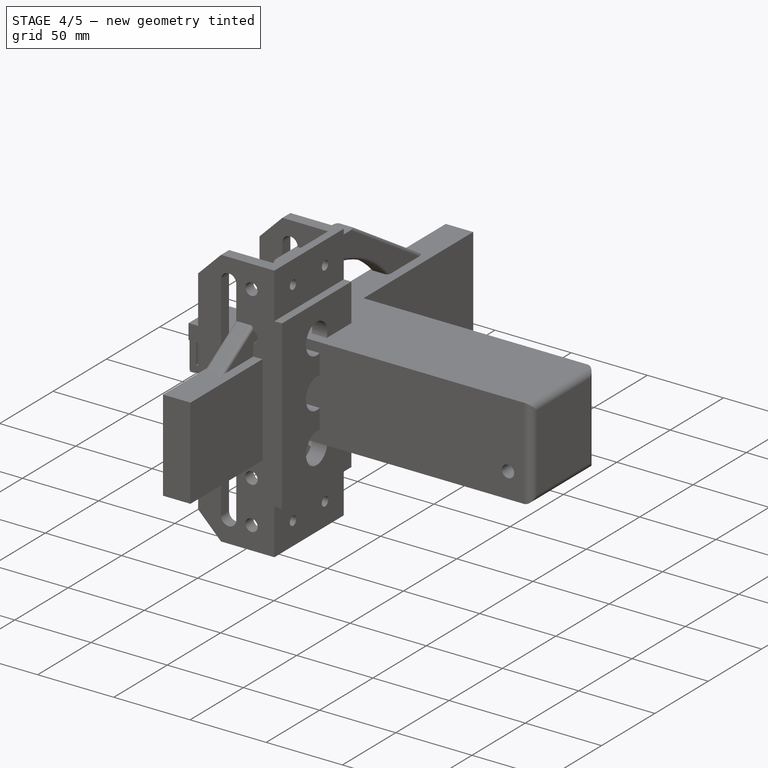
[diagram: stage 4 of 5 — iso view after this stage's code; geometry added in this stage tinted green]
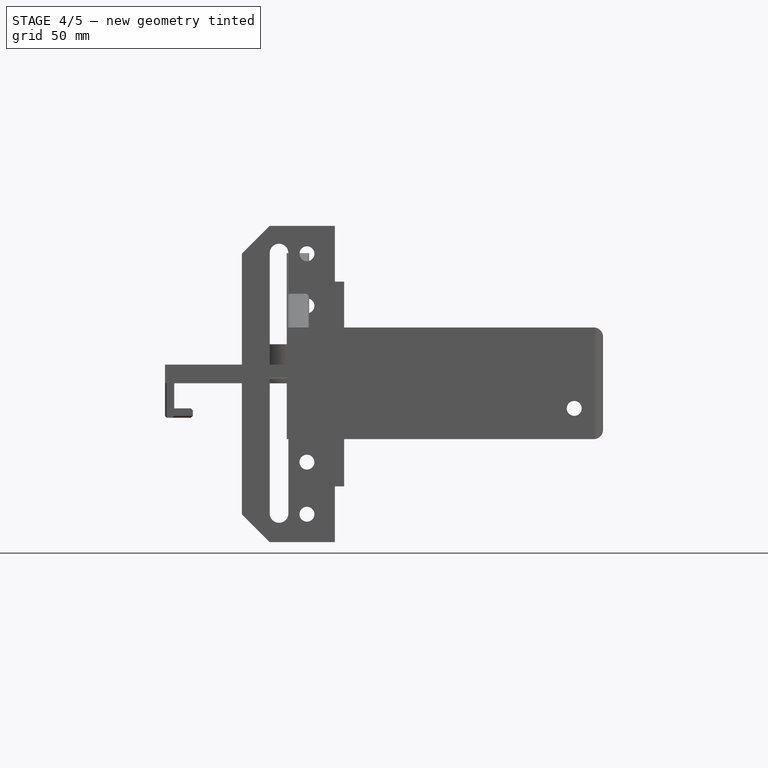
[diagram: stage 4 of 5 — front view after this stage's code; geometry added in this stage tinted green]
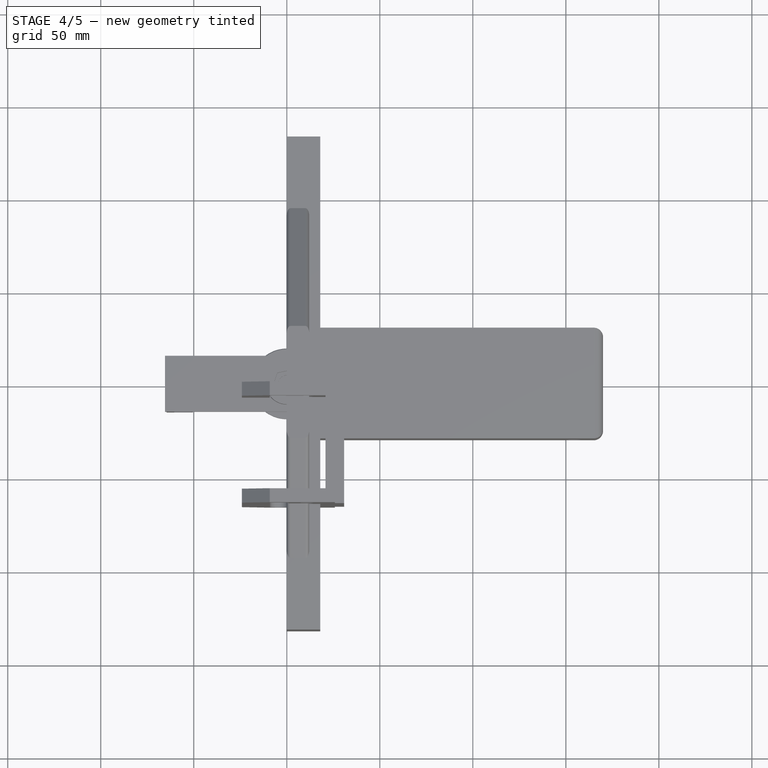
[diagram: stage 4 of 5 — top view after this stage's code; geometry added in this stage tinted green]
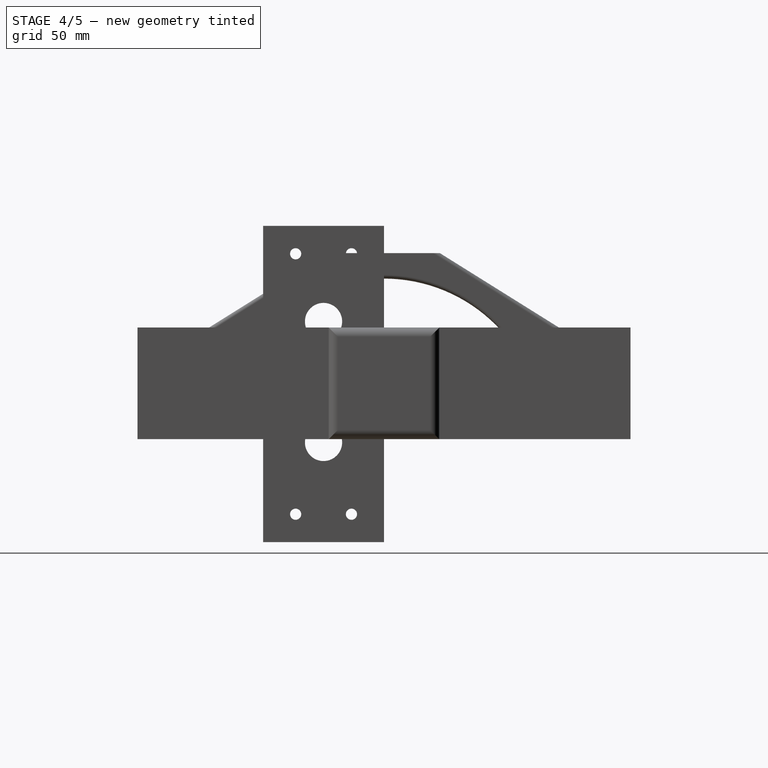
[diagram: stage 4 of 5 — right view after this stage's code; geometry added in this stage tinted green]
FEATURE [Sketcher::SketchObject] Sketch017
  FullyConstrained = true
  MapMode = 5
  Support = -> [XY_Plane003]
  expr: Constraints[8] = Spreadsheet.supportlength
  sketch-geometry (4):
    g0: LineSegment StartX=-65.5 StartY=15 StartZ=0 EndX=65.5 EndY=15 EndZ=0
    g1: LineSegment StartX=65.5 StartY=15 StartZ=0 EndX=65.5 EndY=-15 EndZ=0
    g2: LineSegment StartX=65.5 StartY=-15 StartZ=0 EndX=-65.5 EndY=-15 EndZ=0
    g3: LineSegment StartX=-65.5 StartY=-15 StartZ=0 EndX=-65.5 EndY=15 EndZ=0
  constraints (11):
    c: Coincident(g0,g1)
    c: Coincident(g1,g2)
    c: Coincident(g2,g3)
    c: Coincident(g3,g0)
    c: Horizontal(g0)
    c: Horizontal(g2)
    c: Vertical(g1)
    c: Vertical(g3)
    c: DistanceX(g2,g2) = 131
    c: DistanceY(g3,g3) = 30
    c: Symmetric(g0,g1,g-1)
FEATURE [PartDesign::Pad] Pad005
  Direction = (1,1,1)
  Length = 10
  Length2 = 100
  Profile = -> Sketch017
  Type = 0
FEATURE [Sketcher::SketchObject] Sketch027
  FullyConstrained = true
  MapMode = 5
  Support = -> [XY_Plane005]
  expr: Constraints[8] = Spreadsheet.supportlength
  sketch-geometry (4):
    g0: LineSegment StartX=-65.5 StartY=15 StartZ=0 EndX=65.5 EndY=15 EndZ=0
    g1: LineSegment StartX=65.5 StartY=15 StartZ=0 EndX=65.5 EndY=-15 EndZ=0
    g2: LineSegment StartX=65.5 StartY=-15 StartZ=0 EndX=-65.5 EndY=-15 EndZ=0
    g3: LineSegment StartX=-65.5 StartY=-15 StartZ=0 EndX=-65.5 EndY=15 EndZ=0
  constraints (11):
    c: Coincident(g0,g1)
    c: Coincident(g1,g2)
    c: Coincident(g2,g3)
    c: Coincident(g3,g0)
    c: Horizontal(g0)
    c: Horizontal(g2)
    c: Vertical(g1)
    c: Vertical(g3)
    c: DistanceX(g2,g2) = 131
    c: DistanceY(g3,g3) = 30
    c: Symmetric(g0,g1,g-1)
FEATURE [PartDesign::Pad] Pad009
  Direction = (1,1,1)
  Length = 10
  Length2 = 100
  Profile = -> Sketch027
  Type = 0
FEATURE [Sketcher::SketchObject] Sketch026
  ExternalGeometry = -> [Pad009]
  FullyConstrained = true
  MapMode = 5
  Placement = pos=(0,0,0) rot=(1,0,0;3.14159rad)
  Support = -> [Pad009]
  sketch-geometry (4):
    g0: LineSegment StartX=-65.5 StartY=15 StartZ=0 EndX=-50.5 EndY=15 EndZ=0
    g1: LineSegment StartX=-50.5 StartY=15 StartZ=0 EndX=-50.5 EndY=-15 EndZ=0
    g2: LineSegment StartX=-50.5 StartY=-15 StartZ=0 EndX=-65.5 EndY=-15 EndZ=0
    g3: LineSegment StartX=-65.5 StartY=-15 StartZ=0 EndX=-65.5 EndY=15 EndZ=0
  constraints (11):
    c: Coincident(g0,g1)
    c: Coincident(g1,g2)
    c: Coincident(g2,g3)
    c: Coincident(g3,g0)
    c: Horizontal(g0)
    c: Horizontal(g2)
    c: Vertical(g1)
    c: Vertical(g3)
    c: Coincident(g0,g-4)
    c: PointOnObject(g1,g-5)
    c: DistanceX(g2,g2) = 15
FEATURE [PartDesign::Pad] Pad010
  BaseFeature = -> Pad009
  Direction = (1,1,1)
  Length = 18.5
  Length2 = 100
  Profile = -> Sketch026
  Type = 0
FEATURE [Sketcher::SketchObject] Sketch028
  ExternalGeometry = -> [Pad010]
  FullyConstrained = true
  MapMode = 5
  Placement = pos=(-50.5,0,0) rot=(0.57735,0.57735,0.57735;2.0944rad)
  Support = -> [Pad010]
  sketch-geometry (4):
    g0: LineSegment StartX=-15 StartY=0 StartZ=0 EndX=15 EndY=0 EndZ=0
    g1: LineSegment StartX=15 StartY=0 StartZ=0 EndX=15 EndY=-13.5 EndZ=0
    g2: LineSegment StartX=15 StartY=-13.5 StartZ=0 EndX=-15 EndY=-13.5 EndZ=0
    g3: LineSegment StartX=-15 StartY=-13.5 StartZ=0 EndX=-15 EndY=0 EndZ=0
  constraints (12):
    c: Coincident(g0,g1)
    c: Coincident(g1,g2)
    c: Coincident(g2,g3)
    c: Coincident(g3,g0)
    c: Horizontal(g0)
    c: Horizontal(g2)
    c: Vertical(g1)
    c: Vertical(g3)
    c: DistanceX(g2,g2) = 30
    c: DistanceY(g3,g3) = 13.5
    c: DistanceX(g-5,g0) = 0
    c: DistanceY(g0,g-5) = 0
FEATURE [PartDesign::Pocket] Pocket017
  BaseFeature = -> Pad010
  Length = 10
  Length2 = 100
  Profile = -> Sketch028
  Type = 0
FEATURE [Sketcher::SketchObject] Sketch025
  ExternalGeometry = -> [Pocket017]
  FullyConstrained = true
  MapMode = 5
  Placement = pos=(0,0,0) rot=(1,0,0;3.14159rad)
  Support = -> [Pocket017]
  sketch-geometry (1):
    g0: Circle CenterX=50.5 CenterY=0 CenterZ=0 NormalX=0 NormalY=0 NormalZ=1 AngleXU=0 Radius=3
  constraints (3):
    c: Radius(g0) = 3
    c: DistanceX(g0,g-6) = 15
    c: DistanceY(g0,g-6) = 15
FEATURE [Sketcher::SketchObject] Sketch029
  FullyConstrained = false
  MapMode = 5
  Placement = pos=(0,0,10) rot=(0,0,1;0rad)
  expr: Constraints[8] = Spreadsheet.supportlength / 2 - Spreadsheet.bodywidth / 2
  expr: Constraints[7] = Spreadsheet.bodywidth / 2
  sketch-geometry (4):
    g0: LineSegment StartX=65.5 StartY=15 StartZ=0 EndX=33 EndY=15 EndZ=0
    g1: LineSegment StartX=33 StartY=15 StartZ=0 EndX=33 EndY=-15 EndZ=0
    g2: LineSegment StartX=33 StartY=-15 StartZ=0 EndX=65.5 EndY=-15 EndZ=0
    g3: LineSegment StartX=65.5 StartY=-15 StartZ=0 EndX=65.5 EndY=15 EndZ=0
  constraints (10):
    c: Coincident(g0,g1)
    c: Coincident(g1,g2)
    c: Coincident(g2,g3)
    c: Coincident(g3,g0)
    c: Horizontal(g0)
    c: Horizontal(g2)
    c: Vertical(g1)
    c: DistanceX(g2,g2) = 32.5
    c: DistanceX(g-1,g0) = 33
    c: Symmetric(g0,g2,g-1)
FEATURE [PartDesign::Pocket] Pocket018
  BaseFeature = -> Pocket017
  Length = 5
  Length2 = 100
  Profile = -> Sketch025
  Type = 1
FEATURE [PartDesign::Pocket] Pocket019
  BaseFeature = -> Pocket018
  Length = 5
  Length2 = 100
  Profile = -> Sketch029
  Type = 0
FEATURE [Sketcher::SketchObject] Sketch031
  ExternalGeometry = -> [Pocket020]
  FullyConstrained = true
  MapMode = 5
  Placement = pos=(0,0,0) rot=(1,0,0;3.14159rad)
  Support = -> [Pocket020]
  sketch-geometry (1):
    g0: Circle CenterX=50.5 CenterY=0 CenterZ=0 NormalX=0 NormalY=0 NormalZ=1 AngleXU=0 Radius=3
  constraints (3):
    c: Radius(g0) = 3
    c: DistanceX(g0,g-6) = 15
    c: DistanceY(g0,g-6) = 15
FEATURE [Sketcher::SketchObject] Sketch034
  FullyConstrained = true
  MapMode = 5
  Placement = pos=(0,0,10) rot=(0,0,1;0rad)
  expr: Constraints[7] = Spreadsheet.bodywidth / 2
  expr: Constraints[8] = Spreadsheet.supportlength / 2 - Spreadsheet.bodywidth / 2
  sketch-geometry (4):
    g0: LineSegment StartX=65.5 StartY=15 StartZ=0 EndX=33 EndY=15 EndZ=0
    g1: LineSegment StartX=33 StartY=15 StartZ=0 EndX=33 EndY=-15 EndZ=0
    g2: LineSegment StartX=33 StartY=-15 StartZ=0 EndX=65.5 EndY=-15 EndZ=0
    g3: LineSegment StartX=65.5 StartY=-15 StartZ=0 EndX=65.5 EndY=15 EndZ=0
  constraints (11):
    c: Coincident(g0,g1)
    c: Coincident(g1,g2)
    c: Coincident(g2,g3)
    c: Coincident(g3,g0)
    c: Horizontal(g0)
    c: Horizontal(g2)
    c: Vertical(g1)
    c: DistanceX(g2,g2) = 32.5
    c: DistanceX(g-1,g0) = 33
    c: DistanceY(g3,g3) = 30
    c: Symmetric(g0,g2,g-1)
FEATURE [PartDesign::Pocket] Pocket021
  BaseFeature = -> Pocket020
  Length = 5
  Length2 = 100
  Profile = -> Sketch031
  Type = 1
FEATURE [PartDesign::Pocket] Pocket022
  BaseFeature = -> Pocket021
  Length = 5
  Length2 = 100
  Profile = -> Sketch034
  Type = 0
FEATURE [Sketcher::SketchObject] Sketch039
  ExternalGeometry = -> [Pocket019]
  FullyConstrained = true
  MapMode = 5
  Placement = pos=(0,0,0) rot=(1,0,0;3.14159rad)
  Support = -> [Pocket019]
  expr: Constraints[1] = Spreadsheet.support_screw_countersunk_diameter / 2
  sketch-geometry (1):
    g0: Circle CenterX=50.5 CenterY=0 CenterZ=0 NormalX=0 NormalY=0 NormalZ=1 AngleXU=0 Radius=5
  constraints (2):
    c: Coincident(g0,g-3)
    c: Radius(g0) = 5
FEATURE [PartDesign::Pocket] Pocket027
  BaseFeature = -> Pocket019
  Length = 3
  Length2 = 100
  Profile = -> Sketch039
  Type = 0
  expr: Length = Spreadsheet.support_screw_countersunk_depth
FEATURE [Sketcher::SketchObject] Sketch040
  ExternalGeometry = -> [Sketch031]
  FullyConstrained = true
  MapMode = 5
  Placement = pos=(0,0,0) rot=(1,0,0;3.14159rad)
  Support = -> [Pocket022]
  expr: Constraints[1] = Spreadsheet.support_screw_countersunk_diameter / 2
  sketch-geometry (1):
    g0: Circle CenterX=50.5 CenterY=0 CenterZ=0 NormalX=0 NormalY=0 NormalZ=1 AngleXU=0 Radius=5
  constraints (2):
    c: Coincident(g0,g-3)
    c: Radius(g0) = 5
FEATURE [PartDesign::Pocket] Pocket028
  BaseFeature = -> Pocket022
  Length = 3
  Length2 = 100
  Profile = -> Sketch040
  Type = 0
  expr: Length = Spreadsheet.support_screw_countersunk_depth
FEATURE [PartDesign::Body] Body003  label="Bottom Left"
  Group = -> [Sketch017,Pad005,Sketch016,Pad006,Sketch018,Pocket011,Sketch015,Sketch019,Pocket012,Pocket013,Sketch038,Pocket026,Chamfer006,Chamfer007]
  Origin = -> Origin003
  Tip = -> Chamfer007
FEATURE [PartDesign::Chamfer] Chamfer008
  Angle = 45
  Base = -> Pocket027 [Edge39]
  BaseFeature = -> Pocket027
  ChamferType = 1
  FlipDirection = false
  Size = 25
  Size2 = 10
  SupportTransform = false
FEATURE [PartDesign::Chamfer] Chamfer009
  Angle = 45
  Base = -> Chamfer008 [Edge2,Edge9,Edge1,Edge7,Edge13,Edge6,Edge17,Edge18,Edge31,Edge42,Edge12,Edge26]
  BaseFeature = -> Chamfer008
  ChamferType = 0
  FlipDirection = false
  Size = 1
  Size2 = 1
  SupportTransform = false
FEATURE [PartDesign::Body] Body005  label="Top Right"
  Group = -> [Sketch027,Pad009,Sketch026,Pad010,Sketch028,Pocket017,Sketch025,Sketch029,Pocket018,Pocket019,Sketch039,Pocket027,Chamfer008,Chamfer009]
  Origin = -> Origin005
  Tip = -> Chamfer009
FEATURE [PartDesign::Chamfer] Chamfer
  Angle = 45
  Base = -> Pocket028 [Edge13]
  BaseFeature = -> Pocket028
  ChamferType = 1
  FlipDirection = false
  Size = 10
  Size2 = 25
  SupportTransform = false
FEATURE [PartDesign::Chamfer] Chamfer010
  Angle = 45
  Base = -> Chamfer [Edge7,Edge10,Edge6,Edge24,Edge8,Edge9,Edge1,Edge12,Edge28,Edge29,Edge23,Edge3]
  BaseFeature = -> Chamfer
  ChamferType = 0
  FlipDirection = false
  Size = 1
  Size2 = 1
  SupportTransform = false
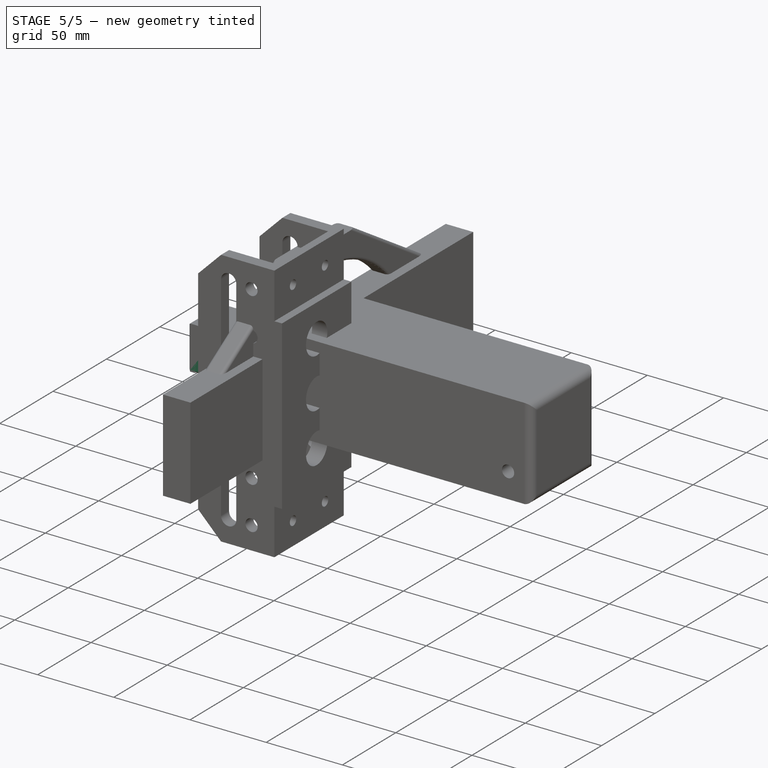
[diagram: stage 5 of 5 — iso view after this stage's code; geometry added in this stage tinted green]
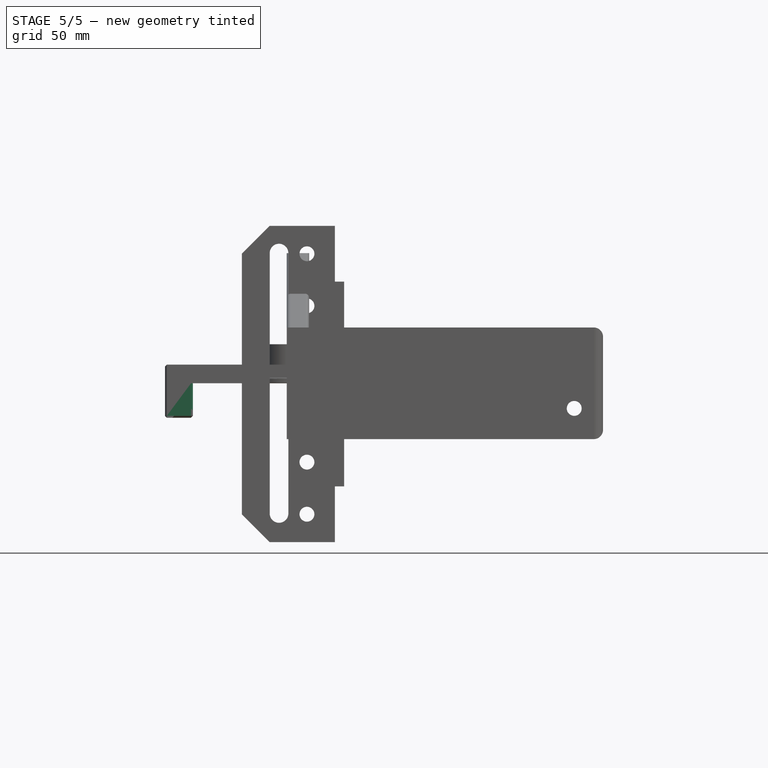
[diagram: stage 5 of 5 — front view after this stage's code; geometry added in this stage tinted green]
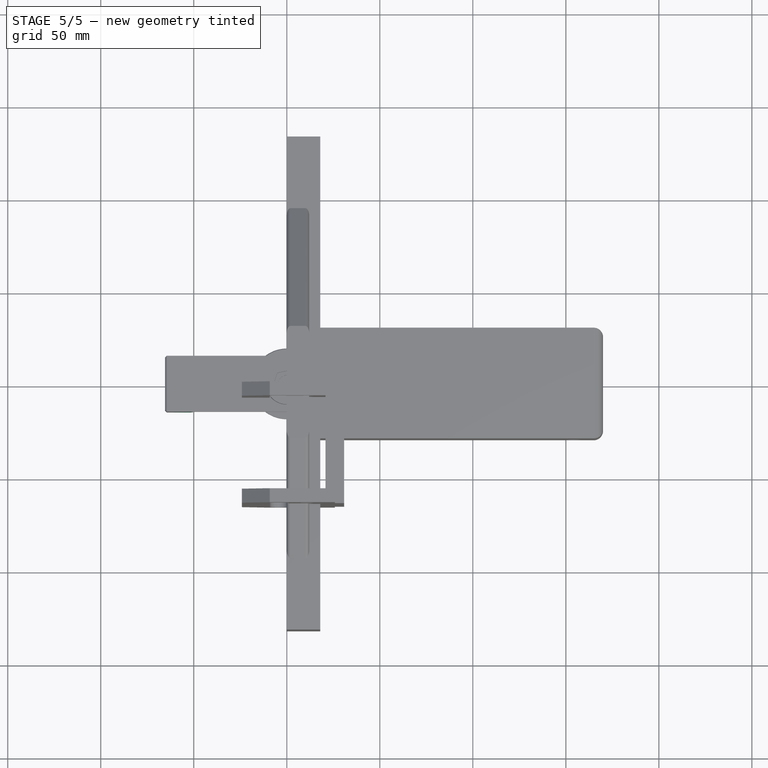
[diagram: stage 5 of 5 — top view after this stage's code; geometry added in this stage tinted green]
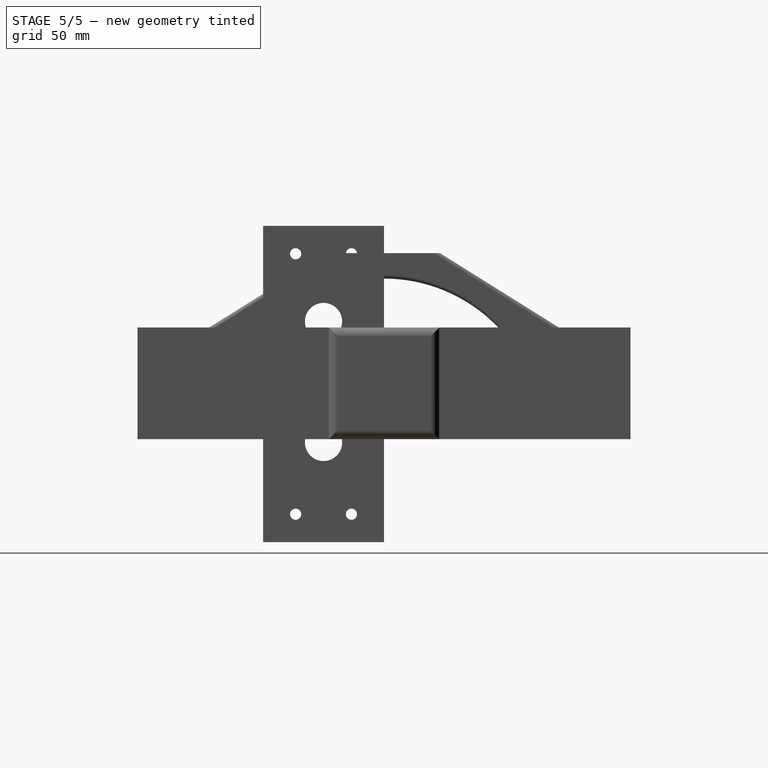
[diagram: stage 5 of 5 — right view after this stage's code; geometry added in this stage tinted green]
FEATURE [Sketcher::SketchObject] Sketch016
  ExternalGeometry = -> [Pad005]
  FullyConstrained = true
  MapMode = 5
  Placement = pos=(0,0,0) rot=(1,0,0;3.14159rad)
  Support = -> [Pad005]
  sketch-geometry (4):
    g0: LineSegment StartX=-65.5 StartY=15 StartZ=0 EndX=-50.5 EndY=15 EndZ=0
    g1: LineSegment StartX=-50.5 StartY=15 StartZ=0 EndX=-50.5 EndY=-15 EndZ=0
    g2: LineSegment StartX=-50.5 StartY=-15 StartZ=0 EndX=-65.5 EndY=-15 EndZ=0
    g3: LineSegment StartX=-65.5 StartY=-15 StartZ=0 EndX=-65.5 EndY=15 EndZ=0
  constraints (11):
    c: Coincident(g0,g1)
    c: Coincident(g1,g2)
    c: Coincident(g2,g3)
    c: Coincident(g3,g0)
    c: Horizontal(g0)
    c: Horizontal(g2)
    c: Vertical(g1)
    c: Vertical(g3)
    c: Coincident(g0,g-4)
    c: PointOnObject(g1,g-5)
    c: DistanceX(g2,g2) = 15
FEATURE [PartDesign::Pad] Pad006
  BaseFeature = -> Pad005
  Direction = (1,1,1)
  Length = 18.5
  Length2 = 100
  Profile = -> Sketch016
  Type = 0
FEATURE [Sketcher::SketchObject] Sketch018
  ExternalGeometry = -> [Pad006]
  FullyConstrained = true
  MapMode = 5
  Placement = pos=(-50.5,0,0) rot=(0.57735,0.57735,0.57735;2.0944rad)
  Support = -> [Pad006]
  sketch-geometry (4):
    g0: LineSegment StartX=-15 StartY=0 StartZ=0 EndX=10 EndY=0 EndZ=0
    g1: LineSegment StartX=10 StartY=0 StartZ=0 EndX=10 EndY=-13.5 EndZ=0
    g2: LineSegment StartX=10 StartY=-13.5 StartZ=0 EndX=-15 EndY=-13.5 EndZ=0
    g3: LineSegment StartX=-15 StartY=-13.5 StartZ=0 EndX=-15 EndY=0 EndZ=0
  constraints (12):
    c: Coincident(g0,g1)
    c: Coincident(g1,g2)
    c: Coincident(g2,g3)
    c: Coincident(g3,g0)
    c: Horizontal(g0)
    c: Horizontal(g2)
    c: Vertical(g1)
    c: Vertical(g3)
    c: DistanceX(g2,g2) = 25
    c: DistanceY(g3,g3) = 13.5
    c: DistanceX(g-5,g0) = 0
    c: DistanceY(g0,g-5) = 0
FEATURE [PartDesign::Pocket] Pocket011
  BaseFeature = -> Pad006
  Length = 10
  Length2 = 100
  Profile = -> Sketch018
  Type = 0
FEATURE [Sketcher::SketchObject] Sketch015
  ExternalGeometry = -> [Pocket011]
  FullyConstrained = true
  MapMode = 5
  Placement = pos=(0,0,0) rot=(1,0,0;3.14159rad)
  Support = -> [Pocket011]
  sketch-geometry (1):
    g0: Circle CenterX=50.5 CenterY=0 CenterZ=0 NormalX=0 NormalY=0 NormalZ=1 AngleXU=0 Radius=3
  constraints (3):
    c: Radius(g0) = 3
    c: DistanceX(g0,g-6) = 15
    c: DistanceY(g0,g-6) = 15
FEATURE [Sketcher::SketchObject] Sketch019
  ExternalGeometry = -> [Sketch017]
  FullyConstrained = false
  MapMode = 5
  Placement = pos=(0,0,10) rot=(0,0,1;0rad)
  expr: Constraints[8] = Spreadsheet.supportlength / 2 - Spreadsheet.bodywidth / 2
  expr: Constraints[7] = Spreadsheet.bodywidth / 2
  sketch-geometry (4):
    g0: LineSegment StartX=65.5 StartY=15 StartZ=0 EndX=33 EndY=15 EndZ=0
    g1: LineSegment StartX=33 StartY=15 StartZ=0 EndX=33 EndY=-15 EndZ=0
    g2: LineSegment StartX=33 StartY=-15 StartZ=0 EndX=65.5 EndY=-15 EndZ=0
    g3: LineSegment StartX=65.5 StartY=-15 StartZ=0 EndX=65.5 EndY=15 EndZ=0
  constraints (10):
    c: Coincident(g0,g1)
    c: Coincident(g1,g2)
    c: Coincident(g2,g3)
    c: Coincident(g3,g0)
    c: Horizontal(g0)
    c: Horizontal(g2)
    c: Vertical(g1)
    c: DistanceX(g2,g2) = 32.5
    c: DistanceX(g-1,g0) = 33
    c: Symmetric(g0,g2,g-1)
FEATURE [PartDesign::Pocket] Pocket012
  BaseFeature = -> Pocket011
  Length = 5
  Length2 = 100
  Profile = -> Sketch015
  Type = 1
FEATURE [PartDesign::Pocket] Pocket013
  BaseFeature = -> Pocket012
  Length = 5
  Length2 = 100
  Profile = -> Sketch019
  Type = 0
FEATURE [Sketcher::SketchObject] Sketch022
  FullyConstrained = true
  MapMode = 5
  Support = -> [XY_Plane004]
  expr: Constraints[8] = Spreadsheet.supportlength
  sketch-geometry (4):
    g0: LineSegment StartX=-65.5 StartY=15 StartZ=0 EndX=65.5 EndY=15 EndZ=0
    g1: LineSegment StartX=65.5 StartY=15 StartZ=0 EndX=65.5 EndY=-15 EndZ=0
    g2: LineSegment StartX=65.5 StartY=-15 StartZ=0 EndX=-65.5 EndY=-15 EndZ=0
    g3: LineSegment StartX=-65.5 StartY=-15 StartZ=0 EndX=-65.5 EndY=15 EndZ=0
  constraints (11):
    c: Coincident(g0,g1)
    c: Coincident(g1,g2)
    c: Coincident(g2,g3)
    c: Coincident(g3,g0)
    c: Horizontal(g0)
    c: Horizontal(g2)
    c: Vertical(g1)
    c: Vertical(g3)
    c: DistanceX(g2,g2) = 131
    c: DistanceY(g3,g3) = 30
    c: Symmetric(g0,g1,g-1)
FEATURE [PartDesign::Pad] Pad007
  Direction = (1,1,1)
  Length = 10
  Length2 = 100
  Profile = -> Sketch022
  Type = 0
FEATURE [Sketcher::SketchObject] Sketch021
  ExternalGeometry = -> [Pad007]
  FullyConstrained = true
  MapMode = 5
  Placement = pos=(0,0,0) rot=(1,0,0;3.14159rad)
  Support = -> [Pad007]
  sketch-geometry (4):
    g0: LineSegment StartX=-65.5 StartY=15 StartZ=0 EndX=-50.5 EndY=15 EndZ=0
    g1: LineSegment StartX=-50.5 StartY=15 StartZ=0 EndX=-50.5 EndY=-15 EndZ=0
    g2: LineSegment StartX=-50.5 StartY=-15 StartZ=0 EndX=-65.5 EndY=-15 EndZ=0
    g3: LineSegment StartX=-65.5 StartY=-15 StartZ=0 EndX=-65.5 EndY=15 EndZ=0
  constraints (11):
    c: Coincident(g0,g1)
    c: Coincident(g1,g2)
    c: Coincident(g2,g3)
    c: Coincident(g3,g0)
    c: Horizontal(g0)
    c: Horizontal(g2)
    c: Vertical(g1)
    c: Vertical(g3)
    c: Coincident(g0,g-4)
    c: PointOnObject(g1,g-5)
    c: DistanceX(g2,g2) = 15
FEATURE [PartDesign::Pad] Pad008
  BaseFeature = -> Pad007
  Direction = (1,1,1)
  Length = 18.5
  Length2 = 100
  Profile = -> Sketch021
  Type = 0
FEATURE [Sketcher::SketchObject] Sketch023
  ExternalGeometry = -> [Pad008]
  FullyConstrained = true
  MapMode = 5
  Placement = pos=(-50.5,0,0) rot=(0.57735,0.57735,0.57735;2.0944rad)
  Support = -> [Pad008]
  sketch-geometry (4):
    g0: LineSegment StartX=-10 StartY=0 StartZ=0 EndX=15 EndY=0 EndZ=0
    g1: LineSegment StartX=15 StartY=0 StartZ=0 EndX=15 EndY=-13.5 EndZ=0
    g2: LineSegment StartX=15 StartY=-13.5 StartZ=0 EndX=-10 EndY=-13.5 EndZ=0
    g3: LineSegment StartX=-10 StartY=-13.5 StartZ=0 EndX=-10 EndY=0 EndZ=0
  constraints (12):
    c: Coincident(g0,g1)
    c: Coincident(g1,g2)
    c: Coincident(g2,g3)
    c: Coincident(g3,g0)
    c: Horizontal(g0)
    c: Horizontal(g2)
    c: Vertical(g1)
    c: Vertical(g3)
    c: DistanceX(g2,g2) = 25
    c: DistanceY(g3,g3) = 13.5
    c: DistanceY(g0,g-5) = 0
    c: DistanceX(g1,g-4) = 0
FEATURE [PartDesign::Pocket] Pocket014
  BaseFeature = -> Pad008
  Length = 10
  Length2 = 100
  Profile = -> Sketch023
  Type = 0
FEATURE [Sketcher::SketchObject] Sketch020
  ExternalGeometry = -> [Pocket014]
  FullyConstrained = true
  MapMode = 5
  Placement = pos=(0,0,0) rot=(1,0,0;3.14159rad)
  Support = -> [Pocket014]
  sketch-geometry (1):
    g0: Circle CenterX=50.5 CenterY=0 CenterZ=0 NormalX=0 NormalY=0 NormalZ=1 AngleXU=0 Radius=3
  constraints (3):
    c: Radius(g0) = 3
    c: DistanceX(g0,g-6) = 15
    c: DistanceY(g0,g-6) = 15
FEATURE [Sketcher::SketchObject] Sketch024
  FullyConstrained = false
  MapMode = 5
  Placement = pos=(0,0,10) rot=(0,0,1;0rad)
  expr: Constraints[8] = Spreadsheet.supportlength / 2 - Spreadsheet.bodywidth / 2
  expr: Constraints[7] = Spreadsheet.bodywidth / 2
  sketch-geometry (4):
    g0: LineSegment StartX=65.5 StartY=15 StartZ=0 EndX=33 EndY=15 EndZ=0
    g1: LineSegment StartX=33 StartY=15 StartZ=0 EndX=33 EndY=-15 EndZ=0
    g2: LineSegment StartX=33 StartY=-15 StartZ=0 EndX=65.5 EndY=-15 EndZ=0
    g3: LineSegment StartX=65.5 StartY=-15 StartZ=0 EndX=65.5 EndY=15 EndZ=0
  constraints (10):
    c: Coincident(g0,g1)
    c: Coincident(g1,g2)
    c: Coincident(g2,g3)
    c: Coincident(g3,g0)
    c: Horizontal(g0)
    c: Horizontal(g2)
    c: Vertical(g1)
    c: DistanceX(g2,g2) = 32.5
    c: DistanceX(g-1,g0) = 33
    c: Symmetric(g0,g2,g-1)
FEATURE [PartDesign::Pocket] Pocket015
  BaseFeature = -> Pocket014
  Length = 5
  Length2 = 100
  Profile = -> Sketch020
  Type = 1
FEATURE [PartDesign::Pocket] Pocket016
  BaseFeature = -> Pocket015
  Length = 5
  Length2 = 100
  Profile = -> Sketch024
  Type = 0
FEATURE [Sketcher::SketchObject] Sketch037
  ExternalGeometry = -> [Pocket016]
  FullyConstrained = true
  MapMode = 5
  Placement = pos=(0,0,0) rot=(1,0,0;3.14159rad)
  Support = -> [Pocket016]
  expr: Constraints[1] = Spreadsheet.support_screw_countersunk_diameter / 2
  sketch-geometry (1):
    g0: Circle CenterX=50.5 CenterY=0 CenterZ=0 NormalX=0 NormalY=0 NormalZ=1 AngleXU=0 Radius=5
  constraints (2):
    c: Coincident(g0,g-3)
    c: Radius(g0) = 5
FEATURE [PartDesign::Pocket] Pocket025
  BaseFeature = -> Pocket016
  Length = 3
  Length2 = 100
  Profile = -> Sketch037
  Type = 0
  expr: Length = Spreadsheet.support_screw_countersunk_depth
FEATURE [Sketcher::SketchObject] Sketch038
  ExternalGeometry = -> [Sketch015]
  FullyConstrained = true
  MapMode = 5
  Placement = pos=(0,0,0) rot=(1,0,0;3.14159rad)
  Support = -> [Pocket013]
  expr: Constraints[1] = Spreadsheet.support_screw_countersunk_diameter / 2
  sketch-geometry (1):
    g0: Circle CenterX=50.5 CenterY=0 CenterZ=0 NormalX=0 NormalY=0 NormalZ=1 AngleXU=0 Radius=5
  constraints (2):
    c: Coincident(g0,g-3)
    c: Radius(g0) = 5
FEATURE [PartDesign::Pocket] Pocket026
  BaseFeature = -> Pocket013
  Length = 3
  Length2 = 100
  Profile = -> Sketch038
  Type = 0
  expr: Length = Spreadsheet.support_screw_countersunk_depth
FEATURE [Spreadsheet::Sheet] Spreadsheet
  cells = A1=SupportLength; B1(supportlength)==131mm; A2=BodyWidth; B2(bodywidth)==65mm; A3=BodyHeight; B3(bodyheight)==55mm; A4=SupportScrewCounterSunkDepth; B4(support_screw_countersunk_depth)==3mm; A5=SupportScrewCounterSunkDiameter; B5(support_screw_countersunk_diameter)==10mm; A7=Model; B7=Support Width; A8=A7; B8==131mm; A9=iPad Air 1; B9==127mm
FEATURE [PartDesign::Chamfer] Chamfer004
  Angle = 45
  Base = -> Pocket025 [Edge13]
  BaseFeature = -> Pocket025
  ChamferType = 1
  FlipDirection = false
  Size = 10
  Size2 = 25
  SupportTransform = false
FEATURE [PartDesign::Chamfer] Chamfer005
  Angle = 45
  Base = -> Chamfer004 [Edge7,Edge10,Edge6,Edge8,Edge24,Edge9,Edge3,Edge23,Edge30,Edge29,Edge12]
  BaseFeature = -> Chamfer004
  ChamferType = 0
  FlipDirection = false
  Size = 1
  Size2 = 1
  SupportTransform = false
FEATURE [PartDesign::Body] Body004  label="Bottom Right"
  Group = -> [Sketch022,Pad007,Sketch021,Pad008,Sketch023,Pocket014,Sketch020,Sketch024,Pocket015,Pocket016,Sketch037,Pocket025,Chamfer004,Chamfer005]
  Origin = -> Origin004
  Tip = -> Chamfer005
FEATURE [PartDesign::Chamfer] Chamfer006
  Angle = 45
  Base = -> Pocket026 [Edge30]
  BaseFeature = -> Pocket026
  ChamferType = 1
  FlipDirection = false
  Size = 25
  Size2 = 10
  SupportTransform = false
FEATURE [PartDesign::Chamfer] Chamfer007
  Angle = 45
  Base = -> Chamfer006 [Edge10,Edge7,Edge3,Edge1,Edge9,Edge8,Edge22,Edge34,Edge12,Edge31,Edge42]
  BaseFeature = -> Chamfer006
  ChamferType = 0
  FlipDirection = false
  Size = 1
  Size2 = 1
  SupportTransform = false
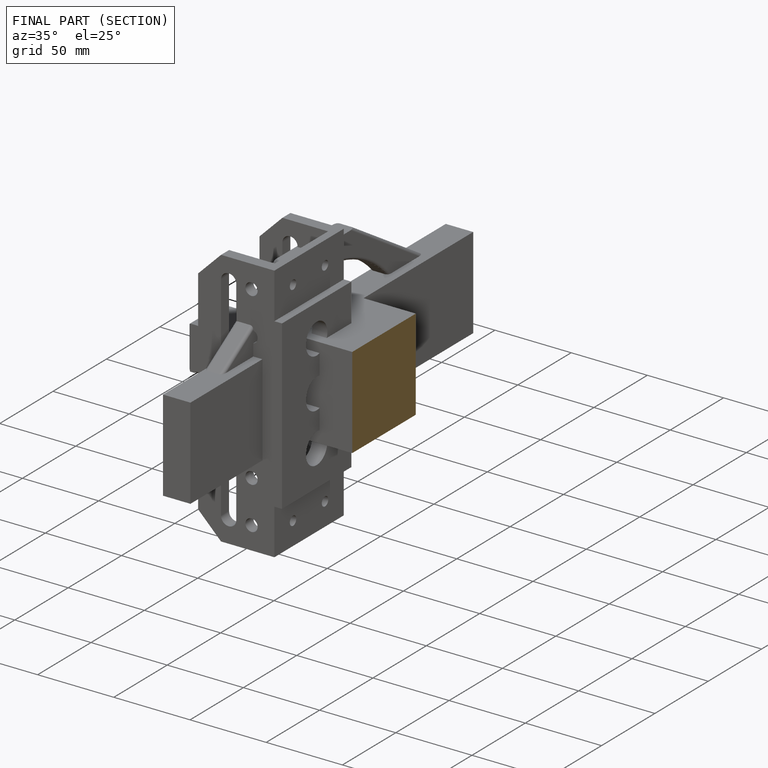
[diagram: finished part — half-section view (interior)]
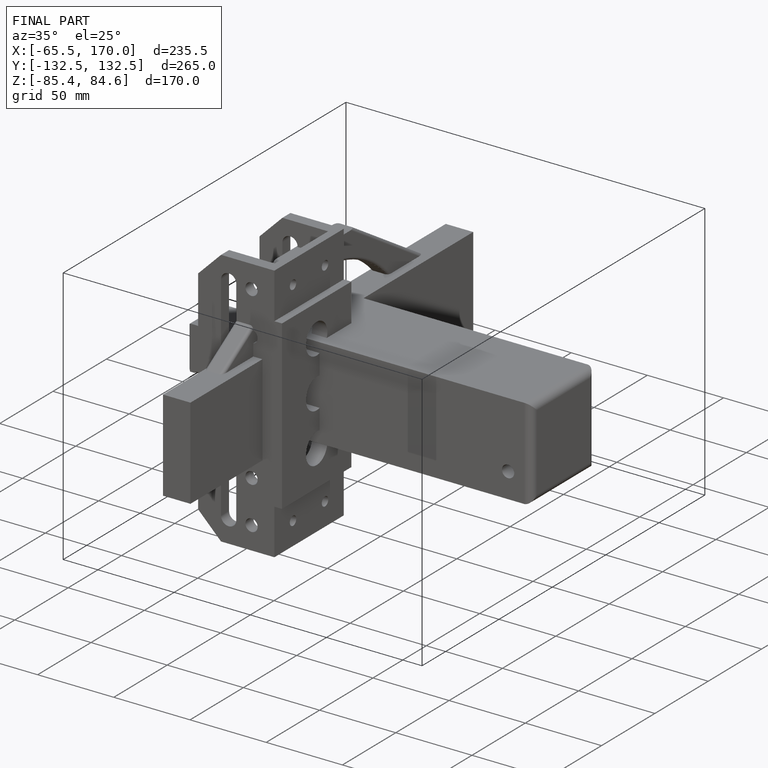
[diagram: finished part — iso view with bounding-box wireframe]
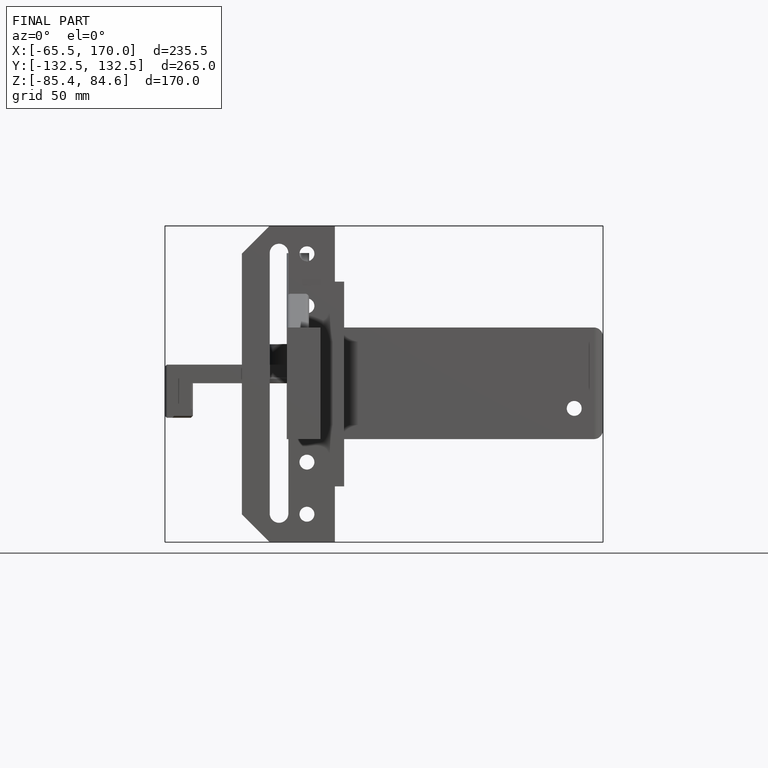
[diagram: finished part — front view with bounding-box wireframe]
